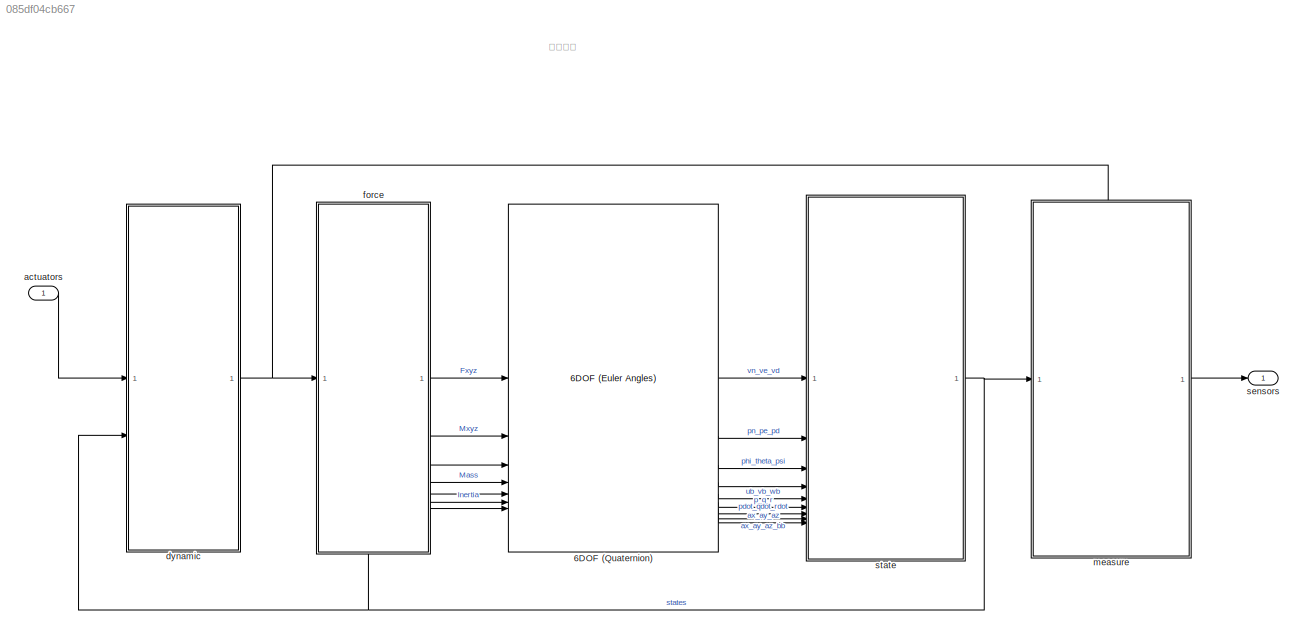
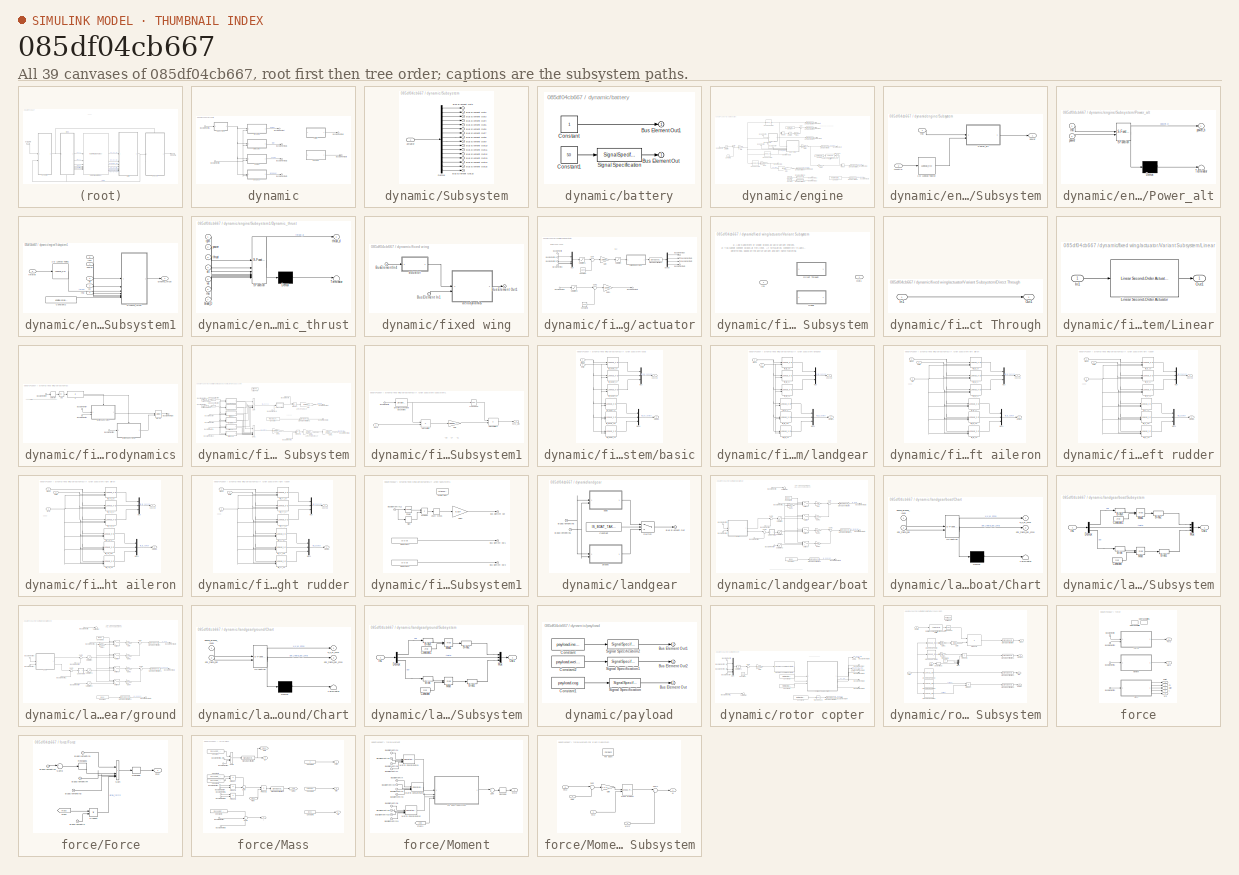
[diagram: thumbnail index - all 39 canvases of the model, root first then tree order]
MODEL slx_085df04cb667
KIND model
CONFIG AbsTol = auto
CONFIG EnableMultiTasking = off
CONFIG FixedStep = 5/1000
CONFIG MaxStep = auto
CONFIG MinStep = auto
CONFIG RelTol = 1e-3
CONFIG SampleTimeConstraint = Unconstrained
CONFIG SolverName = FixedStepAuto
CONFIG StartTime = 0
CONFIG StopTime = 200
BLOCK [Reference] 6DOF (Quaternion)  REF=shared6dof/6DOF (Euler Angles)
  LibrarySourceBlock = aerolib6dof2/6DOF (Quaternion)
  SourceBlock = shared6dof/6DOF (Euler Angles)
  SourceType = 6DOF EoM (Body Axis)
BLOCK [Inport] actuators
  OutDataTypeStr = Bus: actuator_outputs_s
BLOCK [SubSystem] dynamic
BLOCK [Inport] dynamic/Bus Element In
  Port = 2
BLOCK [Inport] dynamic/Bus Element In1
BLOCK [Outport] dynamic/Bus Element Out
BLOCK [Outport] dynamic/Bus Element Out1
BLOCK [Outport] dynamic/Bus Element Out2
BLOCK [Outport] dynamic/Bus Element Out3
BLOCK [Outport] dynamic/Bus Element Out4
BLOCK [Outport] dynamic/Bus Element Out5
BLOCK [SubSystem] dynamic/Subsystem
BLOCK [Outport] dynamic/Subsystem/Bus Element Out1
BLOCK [Outport] dynamic/Subsystem/Bus Element Out10
BLOCK [Outport] dynamic/Subsystem/Bus Element Out11
BLOCK [Outport] dynamic/Subsystem/Bus Element Out12
BLOCK [Outport] dynamic/Subsystem/Bus Element Out13
BLOCK [Outport] dynamic/Subsystem/Bus Element Out14
BLOCK [Outport] dynamic/Subsystem/Bus Element Out15
BLOCK [Outport] dynamic/Subsystem/Bus Element Out16
BLOCK [Outport] dynamic/Subsystem/Bus Element Out2
BLOCK [Outport] dynamic/Subsystem/Bus Element Out3
BLOCK [Outport] dynamic/Subsystem/Bus Element Out4
BLOCK [Outport] dynamic/Subsystem/Bus Element Out5
BLOCK [Outport] dynamic/Subsystem/Bus Element Out6
BLOCK [Outport] dynamic/Subsystem/Bus Element Out7
BLOCK [Outport] dynamic/Subsystem/Bus Element Out8
BLOCK [Outport] dynamic/Subsystem/Bus Element Out9
BLOCK [Demux] dynamic/Subsystem/Demux
  Outputs = 16
BLOCK [Inport] dynamic/Subsystem/actuator
BLOCK [SubSystem] dynamic/battery
BLOCK [Outport] dynamic/battery/Bus Element Out
BLOCK [Outport] dynamic/battery/Bus Element Out1
BLOCK [Constant] dynamic/battery/Constant
BLOCK [Constant] dynamic/battery/Constant1
  Value = 50
BLOCK [SignalSpecification] dynamic/battery/Signal Specification
  Unit = V
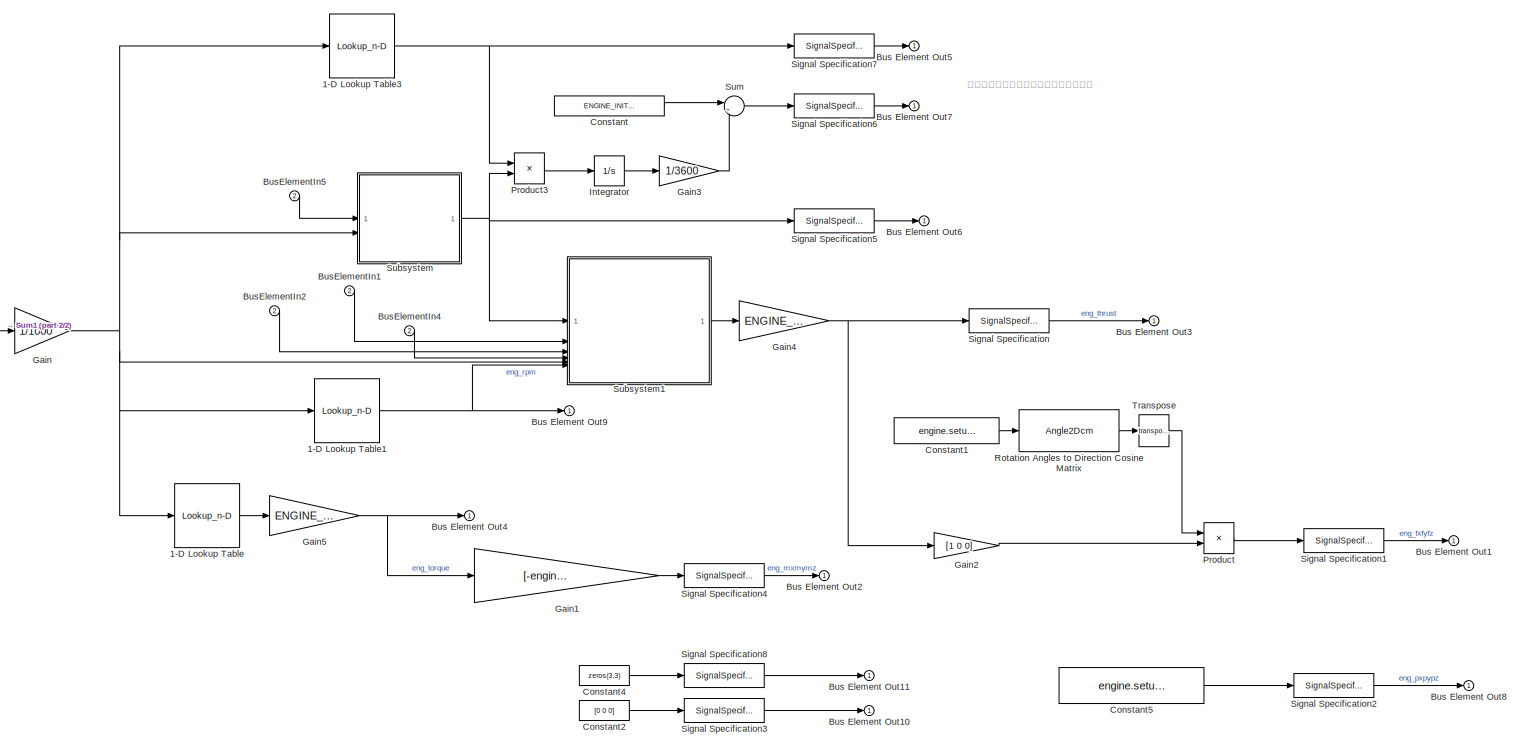
[diagram: dynamic/engine - part 1/2, most of the canvas]
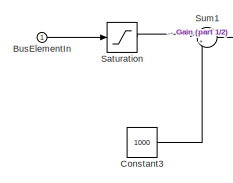
[diagram: dynamic/engine - part 2/2, middle left region]
BLOCK [SubSystem] dynamic/engine
BLOCK [Lookup_n-D] dynamic/engine/1-D Lookup Table
  BeginIndexSearchUsingPreviousIndexResult = on
  BreakpointsForDimension1 = engine.torque.delta
  ExtrapMethod = Clip
  IndexSearchMethod = Linear search
  InputPortMap = u0
  InternalRulePriority = Speed
  NumberOfTableDimensions = 1
  RndMeth = Simplest
  Table = engine.torque.moment
BLOCK [Lookup_n-D] dynamic/engine/1-D Lookup Table1
  BeginIndexSearchUsingPreviousIndexResult = on
  BreakpointsForDimension1 = engine.torque.delta
  ExtrapMethod = Clip
  IndexSearchMethod = Linear search
  InputPortMap = u0
  InternalRulePriority = Speed
  NumberOfTableDimensions = 1
  RndMeth = Simplest
  Table = engine.torque.rpm
BLOCK [Lookup_n-D] dynamic/engine/1-D Lookup Table3
  BeginIndexSearchUsingPreviousIndexResult = on
  BreakpointsForDimension1 = engine.torque.delta
  ExtrapMethod = Clip
  IndexSearchMethod = Linear search
  InputPortMap = u0
  InternalRulePriority = Speed
  NumberOfTableDimensions = 1
  RndMeth = Simplest
  Table = engine.torque.fuel_cons_rate
BLOCK [Outport] dynamic/engine/Bus Element Out1
BLOCK [Outport] dynamic/engine/Bus Element Out10
BLOCK [Outport] dynamic/engine/Bus Element Out11
BLOCK [Outport] dynamic/engine/Bus Element Out2
BLOCK [Outport] dynamic/engine/Bus Element Out3
BLOCK [Outport] dynamic/engine/Bus Element Out4
BLOCK [Outport] dynamic/engine/Bus Element Out5
BLOCK [Outport] dynamic/engine/Bus Element Out6
BLOCK [Outport] dynamic/engine/Bus Element Out7
BLOCK [Outport] dynamic/engine/Bus Element Out8
BLOCK [Outport] dynamic/engine/Bus Element Out9
BLOCK [Inport] dynamic/engine/BusElementIn
BLOCK [Inport] dynamic/engine/BusElementIn1
  Port = 2
BLOCK [Inport] dynamic/engine/BusElementIn2
  Port = 2
BLOCK [Inport] dynamic/engine/BusElementIn4
  Port = 2
BLOCK [Inport] dynamic/engine/BusElementIn5
  Port = 2
BLOCK [Constant] dynamic/engine/Constant
  Value = ENGINE_INIT_FUEL
BLOCK [Constant] dynamic/engine/Constant1
  Value = engine.setup_angle
BLOCK [Constant] dynamic/engine/Constant2
  Value = [0 0 0]
BLOCK [Constant] dynamic/engine/Constant3
  Value = 1000
BLOCK [Constant] dynamic/engine/Constant4
  Value = zeros(3,3)
BLOCK [Constant] dynamic/engine/Constant5
  Value = engine.setup_position
BLOCK [Gain] dynamic/engine/Gain
  Gain = 1/1000
BLOCK [Gain] dynamic/engine/Gain1
  Gain = [-engine.setup_rotation, 0, 0]
BLOCK [Gain] dynamic/engine/Gain2
  Gain = [1 0 0]
BLOCK [Gain] dynamic/engine/Gain3
  Gain = 1/3600
BLOCK [Gain] dynamic/engine/Gain4
  Gain = ENGINE_THRUST_SCALE
BLOCK [Gain] dynamic/engine/Gain5
  Gain = ENGINE_TORQUE_SCALE
BLOCK [Integrator] dynamic/engine/Integrator
BLOCK [Product] dynamic/engine/Product
  Multiplication = Matrix(*)
BLOCK [Product] dynamic/engine/Product3
BLOCK [Angle2Dcm] dynamic/engine/Rotation Angles to Direction Cosine Matrix
  AttributesFormatString = Rotation Order: %<rotationOrder>
BLOCK [Saturate] dynamic/engine/Saturation
  LowerLimit = 1000
  UpperLimit = 2000
BLOCK [SignalSpecification] dynamic/engine/Signal Specification
  Unit = N
BLOCK [SignalSpecification] dynamic/engine/Signal Specification1
  Unit = N
BLOCK [SignalSpecification] dynamic/engine/Signal Specification2
  Unit = m
BLOCK [SignalSpecification] dynamic/engine/Signal Specification3
  Unit = m
BLOCK [SignalSpecification] dynamic/engine/Signal Specification4
  Unit = N*m
BLOCK [SignalSpecification] dynamic/engine/Signal Specification5
  Unit = W
BLOCK [SignalSpecification] dynamic/engine/Signal Specification6
  NameLocation = left
  Unit = kg
BLOCK [SignalSpecification] dynamic/engine/Signal Specification7
  NameLocation = left
  Unit = kg/s
BLOCK [SignalSpecification] dynamic/engine/Signal Specification8
  Unit = kg*m^2
BLOCK [SubSystem] dynamic/engine/Subsystem
BLOCK [Lookup_n-D] dynamic/engine/Subsystem/1-D Lookup Table2
  BeginIndexSearchUsingPreviousIndexResult = on
  BreakpointsForDimension1 = engine.torque.delta
  ExtrapMethod = Clip
  IndexSearchMethod = Linear search
  InputPortMap = u0
  InternalRulePriority = Speed
  NumberOfTableDimensions = 1
  RndMeth = Simplest
  Table = engine.torque.power
BLOCK [SubSystem] dynamic/engine/Subsystem/Power_alt
  ErrorFcn = Stateflow.Translate.translate
  PermitHierarchicalResolution = ExplicitOnly
  SFBlockType = MATLAB Function
  TreatAsAtomicUnit = on
BLOCK [Demux] dynamic/engine/Subsystem/Power_alt/ Demux 
  Outputs = 1
BLOCK [S-Function] dynamic/engine/Subsystem/Power_alt/ SFunction 
  EnableBusSupport = on
  FunctionName = sf_sfun
  PortCounts = [2 2]
  SFcnIsStateOwnerBlock = off
  SFunctionDeploymentMode = off
  Tag = Stateflow S-Function 3
BLOCK [Terminator] dynamic/engine/Subsystem/Power_alt/ Terminator 
BLOCK [Inport] dynamic/engine/Subsystem/Power_alt/power
  Port = 2
BLOCK [Outport] dynamic/engine/Subsystem/Power_alt/power_h
BLOCK [Inport] dynamic/engine/Subsystem/Power_alt/rho
BLOCK [Outport] dynamic/engine/Subsystem/power
BLOCK [Inport] dynamic/engine/Subsystem/rho
BLOCK [Inport] dynamic/engine/Subsystem/throttle
  Port = 2
BLOCK [SubSystem] dynamic/engine/Subsystem1
BLOCK [Lookup_n-D] dynamic/engine/Subsystem1/1-D Lookup Table1
  BeginIndexSearchUsingPreviousIndexResult = on
  BreakpointsForDimension1 = engine.thrust.delta
  ExtrapMethod = Clip
  IndexSearchMethod = Linear search
  InputPortMap = u0
  InternalRulePriority = Speed
  NumberOfTableDimensions = 1
  RndMeth = Simplest
  Table = engine.thrust.force
BLOCK [Constant] dynamic/engine/Subsystem1/Constant2
  Value = engine.propeller_dia
BLOCK [SubSystem] dynamic/engine/Subsystem1/Dynamic_thrust
  ErrorFcn = Stateflow.Translate.translate
  PermitHierarchicalResolution = ExplicitOnly
  SFBlockType = MATLAB Function
  TreatAsAtomicUnit = on
BLOCK [Demux] dynamic/engine/Subsystem1/Dynamic_thrust/ Demux 
  Outputs = 1
BLOCK [S-Function] dynamic/engine/Subsystem1/Dynamic_thrust/ SFunction 
  EnableBusSupport = on
  FunctionName = sf_sfun
  PortCounts = [7 2]
  SFcnIsStateOwnerBlock = off
  SFunctionDeploymentMode = off
  Tag = Stateflow S-Function 1
BLOCK [Terminator] dynamic/engine/Subsystem1/Dynamic_thrust/ Terminator 
BLOCK [Inport] dynamic/engine/Subsystem1/Dynamic_thrust/alt
  Port = 4
BLOCK [Inport] dynamic/engine/Subsystem1/Dynamic_thrust/blade_D
  Port = 7
BLOCK [Inport] dynamic/engine/Subsystem1/Dynamic_thrust/power
  Port = 2
BLOCK [Inport] dynamic/engine/Subsystem1/Dynamic_thrust/rho
  Port = 6
BLOCK [Inport] dynamic/engine/Subsystem1/Dynamic_thrust/rpm
BLOCK [Inport] dynamic/engine/Subsystem1/Dynamic_thrust/thrust
  Port = 3
BLOCK [Outport] dynamic/engine/Subsystem1/Dynamic_thrust/thrust_d
BLOCK [Inport] dynamic/engine/Subsystem1/Dynamic_thrust/va
  Port = 5
BLOCK [Inport] dynamic/engine/Subsystem1/alt
  Port = 3
BLOCK [Outport] dynamic/engine/Subsystem1/dynamic_thrust
BLOCK [Inport] dynamic/engine/Subsystem1/power
BLOCK [Inport] dynamic/engine/Subsystem1/rho
  Port = 4
BLOCK [Inport] dynamic/engine/Subsystem1/rpm
  Port = 6
BLOCK [Inport] dynamic/engine/Subsystem1/throttle
  Port = 5
BLOCK [Inport] dynamic/engine/Subsystem1/va
  Port = 2
BLOCK [Sum] dynamic/engine/Sum
  Inputs = |+-
BLOCK [Sum] dynamic/engine/Sum1
  Inputs = |+-
BLOCK [Math] dynamic/engine/Transpose
  Operator = transpose
BLOCK [SubSystem] dynamic/fixed wing
BLOCK [Inport] dynamic/fixed wing/Bus Element In1
  Port = 2
BLOCK [Outport] dynamic/fixed wing/Bus Element Out1
BLOCK [Inport] dynamic/fixed wing/BusElementIn4
BLOCK [SubSystem] dynamic/fixed wing/actuator
BLOCK [Outport] dynamic/fixed wing/actuator/Bus Element Out
BLOCK [Outport] dynamic/fixed wing/actuator/Bus Element Out1
BLOCK [Outport] dynamic/fixed wing/actuator/Bus Element Out2
BLOCK [Outport] dynamic/fixed wing/actuator/Bus Element Out3
BLOCK [Outport] dynamic/fixed wing/actuator/Bus Element Out4
BLOCK [Inport] dynamic/fixed wing/actuator/BusElementIn
BLOCK [Inport] dynamic/fixed wing/actuator/BusElementIn1
BLOCK [Inport] dynamic/fixed wing/actuator/BusElementIn2
BLOCK [Inport] dynamic/fixed wing/actuator/BusElementIn3
BLOCK [Inport] dynamic/fixed wing/actuator/BusElementIn4
BLOCK [Constant] dynamic/fixed wing/actuator/Constant
  Value = 1500
BLOCK [Constant] dynamic/fixed wing/actuator/Constant3
  Value = 1000
BLOCK [Demux] dynamic/fixed wing/actuator/Demux
BLOCK [Gain] dynamic/fixed wing/actuator/Gain
  Gain = 25/500
BLOCK [Gain] dynamic/fixed wing/actuator/Gain1
  Gain = 1/1000
BLOCK [Mux] dynamic/fixed wing/actuator/Mux
  DisplayOption = bar
BLOCK [Saturate] dynamic/fixed wing/actuator/Saturation
  LowerLimit = -20
  UpperLimit = 20
BLOCK [Saturate] dynamic/fixed wing/actuator/Saturation1
  LowerLimit = 1000
  UpperLimit = 2000
BLOCK [Saturate] dynamic/fixed wing/actuator/Saturation2
  LowerLimit = 1000
  UpperLimit = 2000
BLOCK [SignalSpecification] dynamic/fixed wing/actuator/Signal Specification4
  Unit = deg
BLOCK [Sum] dynamic/fixed wing/actuator/Sum
  Inputs = |+-
BLOCK [Sum] dynamic/fixed wing/actuator/Sum1
  Inputs = |+-
BLOCK [SubSystem] dynamic/fixed wing/actuator/Variant Subsystem
  Variant = on
BLOCK [SubSystem] dynamic/fixed wing/actuator/Variant Subsystem/Direct Through
  VariantControl = true
BLOCK [Inport] dynamic/fixed wing/actuator/Variant Subsystem/Direct Through/In1
BLOCK [Outport] dynamic/fixed wing/actuator/Variant Subsystem/Direct Through/Out1
BLOCK [Inport] dynamic/fixed wing/actuator/Variant Subsystem/In1
BLOCK [SubSystem] dynamic/fixed wing/actuator/Variant Subsystem/Linear
  VariantControl = false
BLOCK [Inport] dynamic/fixed wing/actuator/Variant Subsystem/Linear/In1
BLOCK [Reference] dynamic/fixed wing/actuator/Variant Subsystem/Linear/Linear Second-Order Actuator  REF=aerolibactuator/Linear Second-Order Actuator
  SourceBlock = aerolibactuator/Linear Second-Order Actuator
  SourceType = LinearSecondOrderActuator
BLOCK [Outport] dynamic/fixed wing/actuator/Variant Subsystem/Linear/Out1
BLOCK [Outport] dynamic/fixed wing/actuator/Variant Subsystem/Out1
BLOCK [SubSystem] dynamic/fixed wing/aerodynamics
BLOCK [Abs] dynamic/fixed wing/aerodynamics/Abs
  SaturateOnIntegerOverflow = off
BLOCK [Outport] dynamic/fixed wing/aerodynamics/Bus Element Out
BLOCK [Inport] dynamic/fixed wing/aerodynamics/BusElementIn1
  Port = 2
BLOCK [Inport] dynamic/fixed wing/aerodynamics/BusElementIn2
  Port = 2
BLOCK [Inport] dynamic/fixed wing/aerodynamics/BusElementIn4
  Port = 2
BLOCK [Inport] dynamic/fixed wing/aerodynamics/BusElementIn7
BLOCK [If] dynamic/fixed wing/aerodynamics/If
  IfExpression = u1 > 3
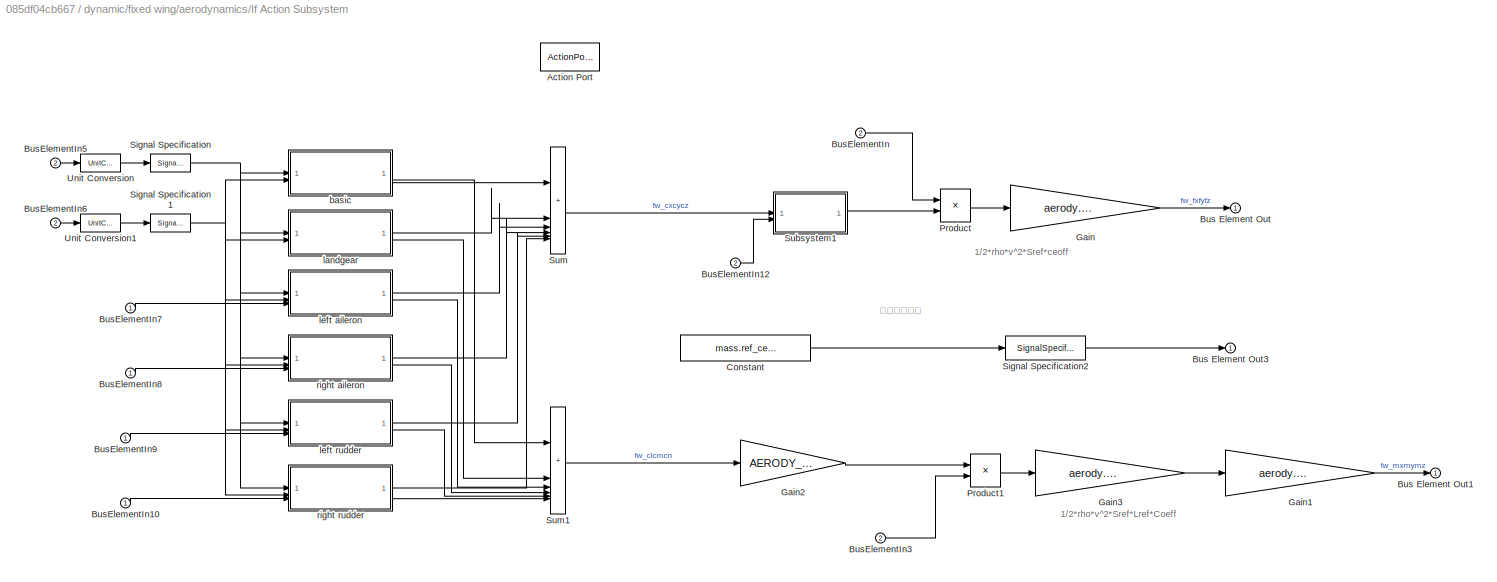
BLOCK [SubSystem] dynamic/fixed wing/aerodynamics/If Action Subsystem
  TreatAsAtomicUnit = on
BLOCK [ActionPort] dynamic/fixed wing/aerodynamics/If Action Subsystem/Action Port
  ActionPortLabel = if(u1 > 3)
  InitializeStates = reset
BLOCK [Outport] dynamic/fixed wing/aerodynamics/If Action Subsystem/Bus Element Out
BLOCK [Outport] dynamic/fixed wing/aerodynamics/If Action Subsystem/Bus Element Out1
BLOCK [Outport] dynamic/fixed wing/aerodynamics/If Action Subsystem/Bus Element Out3
BLOCK [Inport] dynamic/fixed wing/aerodynamics/If Action Subsystem/BusElementIn
  Port = 2
BLOCK [Inport] dynamic/fixed wing/aerodynamics/If Action Subsystem/BusElementIn10
BLOCK [Inport] dynamic/fixed wing/aerodynamics/If Action Subsystem/BusElementIn12
  Port = 2
BLOCK [Inport] dynamic/fixed wing/aerodynamics/If Action Subsystem/BusElementIn3
  Port = 2
BLOCK [Inport] dynamic/fixed wing/aerodynamics/If Action Subsystem/BusElementIn5
  Port = 2
BLOCK [Inport] dynamic/fixed wing/aerodynamics/If Action Subsystem/BusElementIn6
  Port = 2
BLOCK [Inport] dynamic/fixed wing/aerodynamics/If Action Subsystem/BusElementIn7
BLOCK [Inport] dynamic/fixed wing/aerodynamics/If Action Subsystem/BusElementIn8
BLOCK [Inport] dynamic/fixed wing/aerodynamics/If Action Subsystem/BusElementIn9
BLOCK [Constant] dynamic/fixed wing/aerodynamics/If Action Subsystem/Constant
  Value = mass.ref_center
BLOCK [Gain] dynamic/fixed wing/aerodynamics/If Action Subsystem/Gain
  Gain = aerody.ref_aera
BLOCK [Gain] dynamic/fixed wing/aerodynamics/If Action Subsystem/Gain1
  Gain = aerody.ref_aera
BLOCK [Gain] dynamic/fixed wing/aerodynamics/If Action Subsystem/Gain2
  Gain = AERODY_MOMENT_SCALE
BLOCK [Gain] dynamic/fixed wing/aerodynamics/If Action Subsystem/Gain3
  Gain = aerody.ref_length
BLOCK [Product] dynamic/fixed wing/aerodynamics/If Action Subsystem/Product
BLOCK [Product] dynamic/fixed wing/aerodynamics/If Action Subsystem/Product1
BLOCK [SignalSpecification] dynamic/fixed wing/aerodynamics/If Action Subsystem/Signal Specification
  Unit = deg
BLOCK [SignalSpecification] dynamic/fixed wing/aerodynamics/If Action Subsystem/Signal Specification1
  Unit = deg
BLOCK [SignalSpecification] dynamic/fixed wing/aerodynamics/If Action Subsystem/Signal Specification2
  Unit = m
BLOCK [SubSystem] dynamic/fixed wing/aerodynamics/If Action Subsystem/Subsystem1
BLOCK [Inport] dynamic/fixed wing/aerodynamics/If Action Subsystem/Subsystem1/BusElementIn
  Port = 2
BLOCK [Reference] dynamic/fixed wing/aerodynamics/If Action Subsystem/Subsystem1/Direction Cosine Matrix Body to Wind  REF=aerolibtransform2/Direction Cosine Matrix
Body to Wind
  SourceBlock = aerolibtransform2/Direction Cosine Matrix\nBody to Wind
  SourceType = DCM Body to Wind
BLOCK [Inport] dynamic/fixed wing/aerodynamics/If Action Subsystem/Subsystem1/Fxyz
BLOCK [Outport] dynamic/fixed wing/aerodynamics/If Action Subsystem/Subsystem1/Fxyz_Lim
BLOCK [Gain] dynamic/fixed wing/aerodynamics/If Action Subsystem/Subsystem1/Gain
  Gain = AERODY_FORCE_SCALE
BLOCK [Product] dynamic/fixed wing/aerodynamics/If Action Subsystem/Subsystem1/Matrix Multiply
  Multiplication = Matrix(*)
BLOCK [Product] dynamic/fixed wing/aerodynamics/If Action Subsystem/Subsystem1/Matrix Multiply1
  Multiplication = Matrix(*)
BLOCK [Math] dynamic/fixed wing/aerodynamics/If Action Subsystem/Subsystem1/Transpose
  Operator = transpose
BLOCK [Sum] dynamic/fixed wing/aerodynamics/If Action Subsystem/Sum
  IconShape = rectangular
  Inputs = 6
BLOCK [Sum] dynamic/fixed wing/aerodynamics/If Action Subsystem/Sum1
  IconShape = rectangular
  Inputs = 6
BLOCK [UnitConversion] dynamic/fixed wing/aerodynamics/If Action Subsystem/Unit Conversion
BLOCK [UnitConversion] dynamic/fixed wing/aerodynamics/If Action Subsystem/Unit Conversion1
BLOCK [SubSystem] dynamic/fixed wing/aerodynamics/If Action Subsystem/basic
BLOCK [Mux] dynamic/fixed wing/aerodynamics/If Action Subsystem/basic/Mux
  DisplayOption = bar
  Inputs = 3
BLOCK [Mux] dynamic/fixed wing/aerodynamics/If Action Subsystem/basic/Mux1
  DisplayOption = bar
  Inputs = 3
BLOCK [Inport] dynamic/fixed wing/aerodynamics/If Action Subsystem/basic/alpha
  Unit = deg
BLOCK [Inport] dynamic/fixed wing/aerodynamics/If Action Subsystem/basic/beta
  Port = 2
  Unit = deg
BLOCK [Outport] dynamic/fixed wing/aerodynamics/If Action Subsystem/basic/clcmcn
  Port = 2
BLOCK [Outport] dynamic/fixed wing/aerodynamics/If Action Subsystem/basic/cxcycz
BLOCK [Lookup_n-D] dynamic/fixed wing/aerodynamics/If Action Subsystem/basic/fw_basic_cl
  BeginIndexSearchUsingPreviousIndexResult = on
  BreakpointsForDimension1 = aerody.basic.cll.alpha
  BreakpointsForDimension1FirstPoint = 10
  BreakpointsForDimension1Spacing = 12
  BreakpointsForDimension2 = aerody.basic.cll.beta
  BreakpointsForDimension2FirstPoint = 10
  BreakpointsForDimension2Spacing = 12
  DiagnosticForOutOfRangeInput = Warning
  ExtrapMethod = Clip
  IndexSearchMethod = Linear search
  InputPortMap = u0,u1
  InternalRulePriority = Speed
  LookupTableObject = ''
  RndMeth = Simplest
  Table = aerody.basic.cll.coeff
BLOCK [Lookup_n-D] dynamic/fixed wing/aerodynamics/If Action Subsystem/basic/fw_basic_cm
  BeginIndexSearchUsingPreviousIndexResult = on
  BreakpointsForDimension1 = aerody.basic.cm.alpha
  BreakpointsForDimension1FirstPoint = 10
  BreakpointsForDimension1Spacing = 12
  BreakpointsForDimension2 = aerody.basic.cm.beta
  BreakpointsForDimension2FirstPoint = 10
  BreakpointsForDimension2Spacing = 12
  DiagnosticForOutOfRangeInput = Warning
  ExtrapMethod = Clip
  IndexSearchMethod = Linear search
  InputPortMap = u0,u1
  InternalRulePriority = Speed
  LookupTableObject = ''
  RndMeth = Simplest
  Table = aerody.basic.cm.coeff
BLOCK [Lookup_n-D] dynamic/fixed wing/aerodynamics/If Action Subsystem/basic/fw_basic_cn
  BeginIndexSearchUsingPreviousIndexResult = on
  BreakpointsForDimension1 = aerody.basic.cn.alpha
  BreakpointsForDimension1FirstPoint = 10
  BreakpointsForDimension1Spacing = 12
  BreakpointsForDimension2 = aerody.basic.cn.beta
  BreakpointsForDimension2FirstPoint = 10
  BreakpointsForDimension2Spacing = 12
  DiagnosticForOutOfRangeInput = Warning
  ExtrapMethod = Clip
  IndexSearchMethod = Linear search
  InputPortMap = u0,u1
  InternalRulePriority = Speed
  LookupTableObject = ''
  RndMeth = Simplest
  Table = aerody.basic.cn.coeff
BLOCK [Lookup_n-D] dynamic/fixed wing/aerodynamics/If Action Subsystem/basic/fw_basic_cx
  BeginIndexSearchUsingPreviousIndexResult = on
  BreakpointsForDimension1 = aerody.basic.cx.alpha
  BreakpointsForDimension1FirstPoint = 10
  BreakpointsForDimension1Spacing = 12
  BreakpointsForDimension2 = aerody.basic.cx.beta
  BreakpointsForDimension2FirstPoint = 10
  BreakpointsForDimension2Spacing = 12
  DiagnosticForOutOfRangeInput = Warning
  ExtrapMethod = Clip
  IndexSearchMethod = Linear search
  InputPortMap = u0,u1
  InternalRulePriority = Speed
  LookupTableObject = ''
  RndMeth = Simplest
  Table = aerody.basic.cx.coeff
BLOCK [Lookup_n-D] dynamic/fixed wing/aerodynamics/If Action Subsystem/basic/fw_basic_cy
  BeginIndexSearchUsingPreviousIndexResult = on
  BreakpointsForDimension1 = aerody.basic.cy.alpha
  BreakpointsForDimension1FirstPoint = 10
  BreakpointsForDimension1Spacing = 12
  BreakpointsForDimension2 = aerody.basic.cy.beta
  BreakpointsForDimension2FirstPoint = 10
  BreakpointsForDimension2Spacing = 12
  DiagnosticForOutOfRangeInput = Warning
  ExtrapMethod = Clip
  IndexSearchMethod = Linear search
  InputPortMap = u0,u1
  InternalRulePriority = Speed
  LookupTableObject = ''
  RndMeth = Simplest
  Table = aerody.basic.cy.coeff
BLOCK [Lookup_n-D] dynamic/fixed wing/aerodynamics/If Action Subsystem/basic/fw_basic_cz
  BeginIndexSearchUsingPreviousIndexResult = on
  BreakpointsForDimension1 = aerody.basic.cz.alpha
  BreakpointsForDimension1FirstPoint = 10
  BreakpointsForDimension1Spacing = 12
  BreakpointsForDimension2 = aerody.basic.cz.beta
  BreakpointsForDimension2FirstPoint = 10
  BreakpointsForDimension2Spacing = 12
  DiagnosticForOutOfRangeInput = Warning
  ExtrapMethod = Clip
  IndexSearchMethod = Linear search
  InputPortMap = u0,u1
  InternalRulePriority = Speed
  LookupTableObject = ''
  RndMeth = Simplest
  Table = aerody.basic.cz.coeff
BLOCK [SubSystem] dynamic/fixed wing/aerodynamics/If Action Subsystem/landgear
BLOCK [Mux] dynamic/fixed wing/aerodynamics/If Action Subsystem/landgear/Mux
  DisplayOption = bar
  Inputs = 3
BLOCK [Mux] dynamic/fixed wing/aerodynamics/If Action Subsystem/landgear/Mux1
  DisplayOption = bar
  Inputs = 3
BLOCK [Inport] dynamic/fixed wing/aerodynamics/If Action Subsystem/landgear/alpha
BLOCK [Inport] dynamic/fixed wing/aerodynamics/If Action Subsystem/landgear/beta
  Port = 2
BLOCK [Outport] dynamic/fixed wing/aerodynamics/If Action Subsystem/landgear/clcmcn
  Port = 2
BLOCK [Outport] dynamic/fixed wing/aerodynamics/If Action Subsystem/landgear/cxcycz
BLOCK [Lookup_n-D] dynamic/fixed wing/aerodynamics/If Action Subsystem/landgear/fw_lg_cl
  BeginIndexSearchUsingPreviousIndexResult = on
  BreakpointsForDimension1 = aerody.landgear.cll.alpha
  BreakpointsForDimension1FirstPoint = 10
  BreakpointsForDimension1Spacing = 12
  BreakpointsForDimension2 = aerody.landgear.cll.beta
  BreakpointsForDimension2FirstPoint = 10
  BreakpointsForDimension2Spacing = 12
  DiagnosticForOutOfRangeInput = Warning
  ExtrapMethod = Clip
  IndexSearchMethod = Linear search
  InputPortMap = u0,u1
  InternalRulePriority = Speed
  LookupTableObject = ''
  RndMeth = Simplest
  Table = aerody.landgear.cll.coeff
BLOCK [Lookup_n-D] dynamic/fixed wing/aerodynamics/If Action Subsystem/landgear/fw_lg_cm
  BeginIndexSearchUsingPreviousIndexResult = on
  BreakpointsForDimension1 = aerody.landgear.cm.alpha
  BreakpointsForDimension1FirstPoint = 10
  BreakpointsForDimension1Spacing = 12
  BreakpointsForDimension2 = aerody.landgear.cm.beta
  BreakpointsForDimension2FirstPoint = 10
  BreakpointsForDimension2Spacing = 12
  DiagnosticForOutOfRangeInput = Warning
  ExtrapMethod = Clip
  IndexSearchMethod = Linear search
  InputPortMap = u0,u1
  InternalRulePriority = Speed
  LookupTableObject = ''
  RndMeth = Simplest
  Table = aerody.landgear.cm.coeff
BLOCK [Lookup_n-D] dynamic/fixed wing/aerodynamics/If Action Subsystem/landgear/fw_lg_cn
  BeginIndexSearchUsingPreviousIndexResult = on
  BreakpointsForDimension1 = aerody.landgear.cn.alpha
  BreakpointsForDimension1FirstPoint = 10
  BreakpointsForDimension1Spacing = 12
  BreakpointsForDimension2 = aerody.landgear.cn.beta
  BreakpointsForDimension2FirstPoint = 10
  BreakpointsForDimension2Spacing = 12
  DiagnosticForOutOfRangeInput = Warning
  ExtrapMethod = Clip
  IndexSearchMethod = Linear search
  InputPortMap = u0,u1
  InternalRulePriority = Speed
  LookupTableObject = ''
  RndMeth = Simplest
  Table = aerody.landgear.cn.coeff
BLOCK [Lookup_n-D] dynamic/fixed wing/aerodynamics/If Action Subsystem/landgear/fw_lg_cx
  BeginIndexSearchUsingPreviousIndexResult = on
  BreakpointsForDimension1 = aerody.landgear.cx.alpha
  BreakpointsForDimension1FirstPoint = 10
  BreakpointsForDimension1Spacing = 12
  BreakpointsForDimension2 = aerody.landgear.cx.beta
  BreakpointsForDimension2FirstPoint = 10
  BreakpointsForDimension2Spacing = 12
  DiagnosticForOutOfRangeInput = Warning
  ExtrapMethod = Clip
  IndexSearchMethod = Linear search
  InputPortMap = u0,u1
  InternalRulePriority = Speed
  LookupTableObject = ''
  RndMeth = Simplest
  Table = aerody.landgear.cx.coeff
BLOCK [Lookup_n-D] dynamic/fixed wing/aerodynamics/If Action Subsystem/landgear/fw_lg_cy
  BeginIndexSearchUsingPreviousIndexResult = on
  BreakpointsForDimension1 = aerody.landgear.cy.alpha
  BreakpointsForDimension1FirstPoint = 10
  BreakpointsForDimension1Spacing = 12
  BreakpointsForDimension2 = aerody.landgear.cy.beta
  BreakpointsForDimension2FirstPoint = 10
  BreakpointsForDimension2Spacing = 12
  DiagnosticForOutOfRangeInput = Warning
  ExtrapMethod = Clip
  IndexSearchMethod = Linear search
  InputPortMap = u0,u1
  InternalRulePriority = Speed
  LookupTableObject = ''
  RndMeth = Simplest
  Table = aerody.landgear.cy.coeff
BLOCK [Lookup_n-D] dynamic/fixed wing/aerodynamics/If Action Subsystem/landgear/fw_lg_cz
  BeginIndexSearchUsingPreviousIndexResult = on
  BreakpointsForDimension1 = aerody.landgear.cz.alpha
  BreakpointsForDimension1FirstPoint = 10
  BreakpointsForDimension1Spacing = 12
  BreakpointsForDimension2 = aerody.landgear.cz.beta
  BreakpointsForDimension2FirstPoint = 10
  BreakpointsForDimension2Spacing = 12
  DiagnosticForOutOfRangeInput = Warning
  ExtrapMethod = Clip
  IndexSearchMethod = Linear search
  InputPortMap = u0,u1
  InternalRulePriority = Speed
  LookupTableObject = ''
  RndMeth = Simplest
  Table = aerody.landgear.cz.coeff
BLOCK [SubSystem] dynamic/fixed wing/aerodynamics/If Action Subsystem/left aileron
BLOCK [Mux] dynamic/fixed wing/aerodynamics/If Action Subsystem/left aileron/Mux
  DisplayOption = bar
  Inputs = 3
BLOCK [Mux] dynamic/fixed wing/aerodynamics/If Action Subsystem/left aileron/Mux1
  DisplayOption = bar
  Inputs = 3
BLOCK [Inport] dynamic/fixed wing/aerodynamics/If Action Subsystem/left aileron/alpha
BLOCK [Inport] dynamic/fixed wing/aerodynamics/If Action Subsystem/left aileron/beta
  Port = 2
BLOCK [Outport] dynamic/fixed wing/aerodynamics/If Action Subsystem/left aileron/clcmcn
  Port = 2
BLOCK [Outport] dynamic/fixed wing/aerodynamics/If Action Subsystem/left aileron/cxcycz
BLOCK [Inport] dynamic/fixed wing/aerodynamics/If Action Subsystem/left aileron/dla
  Port = 3
BLOCK [Lookup_n-D] dynamic/fixed wing/aerodynamics/If Action Subsystem/left aileron/fw_la_cl
  BeginIndexSearchUsingPreviousIndexResult = on
  BreakpointsForDimension1 = aerody.left_aileron.cll.alpha
  BreakpointsForDimension1FirstPoint = 10
  BreakpointsForDimension1Spacing = 12
  BreakpointsForDimension2 = aerody.left_aileron.cll.beta
  BreakpointsForDimension2FirstPoint = 10
  BreakpointsForDimension2Spacing = 12
  BreakpointsForDimension3 = aerody.left_aileron.cll.delta
  DiagnosticForOutOfRangeInput = Warning
  ExtrapMethod = Clip
  IndexSearchMethod = Linear search
  InputPortMap = u0,u1,u2
  InternalRulePriority = Speed
  LookupTableObject = ''
  NumberOfTableDimensions = 3
  RndMeth = Simplest
  Table = aerody.left_aileron.cll.coeff
BLOCK [Lookup_n-D] dynamic/fixed wing/aerodynamics/If Action Subsystem/left aileron/fw_la_cm
  BeginIndexSearchUsingPreviousIndexResult = on
  BreakpointsForDimension1 = aerody.left_aileron.cm.alpha
  BreakpointsForDimension1FirstPoint = 10
  BreakpointsForDimension1Spacing = 12
  BreakpointsForDimension2 = aerody.left_aileron.cm.beta
  BreakpointsForDimension2FirstPoint = 10
  BreakpointsForDimension2Spacing = 12
  BreakpointsForDimension3 = aerody.left_aileron.cm.delta
  DiagnosticForOutOfRangeInput = Warning
  ExtrapMethod = Clip
  IndexSearchMethod = Linear search
  InputPortMap = u0,u1,u2
  InternalRulePriority = Speed
  LookupTableObject = ''
  NumberOfTableDimensions = 3
  RndMeth = Simplest
  Table = aerody.left_aileron.cm.coeff
BLOCK [Lookup_n-D] dynamic/fixed wing/aerodynamics/If Action Subsystem/left aileron/fw_la_cn
  BeginIndexSearchUsingPreviousIndexResult = on
  BreakpointsForDimension1 = aerody.left_aileron.cn.alpha
  BreakpointsForDimension1FirstPoint = 10
  BreakpointsForDimension1Spacing = 12
  BreakpointsForDimension2 = aerody.left_aileron.cn.beta
  BreakpointsForDimension2FirstPoint = 10
  BreakpointsForDimension2Spacing = 12
  BreakpointsForDimension3 = aerody.left_aileron.cn.delta
  DiagnosticForOutOfRangeInput = Warning
  ExtrapMethod = Clip
  IndexSearchMethod = Linear search
  InputPortMap = u0,u1,u2
  InternalRulePriority = Speed
  LookupTableObject = ''
  NumberOfTableDimensions = 3
  RndMeth = Simplest
  Table = aerody.left_aileron.cn.coeff
BLOCK [Lookup_n-D] dynamic/fixed wing/aerodynamics/If Action Subsystem/left aileron/fw_la_cx
  BeginIndexSearchUsingPreviousIndexResult = on
  BreakpointsForDimension1 = aerody.left_aileron.cx.alpha
  BreakpointsForDimension1FirstPoint = 10
  BreakpointsForDimension1Spacing = 12
  BreakpointsForDimension2 = aerody.left_aileron.cx.beta
  BreakpointsForDimension2FirstPoint = 10
  BreakpointsForDimension2Spacing = 12
  BreakpointsForDimension3 = aerody.left_aileron.cx.delta
  DiagnosticForOutOfRangeInput = Warning
  ExtrapMethod = Clip
  IndexSearchMethod = Linear search
  InputPortMap = u0,u1,u2
  InternalRulePriority = Speed
  LookupTableObject = ''
  NumberOfTableDimensions = 3
  RndMeth = Simplest
  Table = aerody.left_aileron.cx.coeff
BLOCK [Lookup_n-D] dynamic/fixed wing/aerodynamics/If Action Subsystem/left aileron/fw_la_cy
  BeginIndexSearchUsingPreviousIndexResult = on
  BreakpointsForDimension1 = aerody.left_aileron.cy.alpha
  BreakpointsForDimension1FirstPoint = 10
  BreakpointsForDimension1Spacing = 12
  BreakpointsForDimension2 = aerody.left_aileron.cy.beta
  BreakpointsForDimension2FirstPoint = 10
  BreakpointsForDimension2Spacing = 12
  BreakpointsForDimension3 = aerody.left_aileron.cy.delta
  DiagnosticForOutOfRangeInput = Warning
  ExtrapMethod = Clip
  IndexSearchMethod = Linear search
  InputPortMap = u0,u1,u2
  InternalRulePriority = Speed
  LookupTableObject = ''
  NumberOfTableDimensions = 3
  RndMeth = Simplest
  Table = aerody.left_aileron.cy.coeff
BLOCK [Lookup_n-D] dynamic/fixed wing/aerodynamics/If Action Subsystem/left aileron/fw_la_cz
  BeginIndexSearchUsingPreviousIndexResult = on
  BreakpointsForDimension1 = aerody.left_aileron.cz.alpha
  BreakpointsForDimension1FirstPoint = 10
  BreakpointsForDimension1Spacing = 12
  BreakpointsForDimension2 = aerody.left_aileron.cz.beta
  BreakpointsForDimension2FirstPoint = 10
  BreakpointsForDimension2Spacing = 12
  BreakpointsForDimension3 = aerody.left_aileron.cz.delta
  DiagnosticForOutOfRangeInput = Warning
  ExtrapMethod = Clip
  IndexSearchMethod = Linear search
  InputPortMap = u0,u1,u2
  InternalRulePriority = Speed
  LookupTableObject = ''
  NumberOfTableDimensions = 3
  RndMeth = Simplest
  Table = aerody.left_aileron.cz.coeff
BLOCK [SubSystem] dynamic/fixed wing/aerodynamics/If Action Subsystem/left rudder
BLOCK [Mux] dynamic/fixed wing/aerodynamics/If Action Subsystem/left rudder/Mux
  DisplayOption = bar
  Inputs = 3
BLOCK [Mux] dynamic/fixed wing/aerodynamics/If Action Subsystem/left rudder/Mux1
  DisplayOption = bar
  Inputs = 3
BLOCK [Inport] dynamic/fixed wing/aerodynamics/If Action Subsystem/left rudder/alpha
BLOCK [Inport] dynamic/fixed wing/aerodynamics/If Action Subsystem/left rudder/beta
  Port = 2
BLOCK [Outport] dynamic/fixed wing/aerodynamics/If Action Subsystem/left rudder/clcmcn
  Port = 2
BLOCK [Outport] dynamic/fixed wing/aerodynamics/If Action Subsystem/left rudder/cxcycz
BLOCK [Inport] dynamic/fixed wing/aerodynamics/If Action Subsystem/left rudder/dlr
  Port = 3
BLOCK [Lookup_n-D] dynamic/fixed wing/aerodynamics/If Action Subsystem/left rudder/fw_lr_cl
  BeginIndexSearchUsingPreviousIndexResult = on
  BreakpointsForDimension1 = aerody.left_rudder.cll.alpha
  BreakpointsForDimension1FirstPoint = 10
  BreakpointsForDimension1Spacing = 12
  BreakpointsForDimension2 = aerody.left_rudder.cll.beta
  BreakpointsForDimension2FirstPoint = 10
  BreakpointsForDimension2Spacing = 12
  BreakpointsForDimension3 = aerody.left_rudder.cll.delta
  DiagnosticForOutOfRangeInput = Warning
  ExtrapMethod = Clip
  IndexSearchMethod = Linear search
  InputPortMap = u0,u1,u2
  InternalRulePriority = Speed
  LookupTableObject = ''
  NumberOfTableDimensions = 3
  RndMeth = Simplest
  Table = aerody.left_rudder.cll.coeff
BLOCK [Lookup_n-D] dynamic/fixed wing/aerodynamics/If Action Subsystem/left rudder/fw_lr_cm
  BeginIndexSearchUsingPreviousIndexResult = on
  BreakpointsForDimension1 = aerody.left_rudder.cm.alpha
  BreakpointsForDimension1FirstPoint = 10
  BreakpointsForDimension1Spacing = 12
  BreakpointsForDimension2 = aerody.left_rudder.cm.beta
  BreakpointsForDimension2FirstPoint = 10
  BreakpointsForDimension2Spacing = 12
  BreakpointsForDimension3 = aerody.left_rudder.cm.delta
  DiagnosticForOutOfRangeInput = Warning
  ExtrapMethod = Clip
  IndexSearchMethod = Linear search
  InputPortMap = u0,u1,u2
  InternalRulePriority = Speed
  LookupTableObject = ''
  NumberOfTableDimensions = 3
  RndMeth = Simplest
  Table = aerody.left_rudder.cm.coeff
BLOCK [Lookup_n-D] dynamic/fixed wing/aerodynamics/If Action Subsystem/left rudder/fw_lr_cn
  BeginIndexSearchUsingPreviousIndexResult = on
  BreakpointsForDimension1 = aerody.left_rudder.cn.alpha
  BreakpointsForDimension1FirstPoint = 10
  BreakpointsForDimension1Spacing = 12
  BreakpointsForDimension2 = aerody.left_rudder.cn.beta
  BreakpointsForDimension2FirstPoint = 10
  BreakpointsForDimension2Spacing = 12
  BreakpointsForDimension3 = aerody.left_rudder.cn.delta
  DiagnosticForOutOfRangeInput = Warning
  ExtrapMethod = Clip
  IndexSearchMethod = Linear search
  InputPortMap = u0,u1,u2
  InternalRulePriority = Speed
  LookupTableObject = ''
  NumberOfTableDimensions = 3
  RndMeth = Simplest
  Table = aerody.left_rudder.cn.coeff
BLOCK [Lookup_n-D] dynamic/fixed wing/aerodynamics/If Action Subsystem/left rudder/fw_lr_cx
  BeginIndexSearchUsingPreviousIndexResult = on
  BreakpointsForDimension1 = aerody.left_rudder.cx.alpha
  BreakpointsForDimension1FirstPoint = 10
  BreakpointsForDimension1Spacing = 12
  BreakpointsForDimension2 = aerody.left_rudder.cx.beta
  BreakpointsForDimension2FirstPoint = 10
  BreakpointsForDimension2Spacing = 12
  BreakpointsForDimension3 = aerody.left_rudder.cx.delta
  DiagnosticForOutOfRangeInput = Warning
  ExtrapMethod = Clip
  IndexSearchMethod = Linear search
  InputPortMap = u0,u1,u2
  InternalRulePriority = Speed
  LookupTableObject = ''
  NumberOfTableDimensions = 3
  RndMeth = Simplest
  Table = aerody.left_rudder.cx.coeff
BLOCK [Lookup_n-D] dynamic/fixed wing/aerodynamics/If Action Subsystem/left rudder/fw_lr_cy
  BeginIndexSearchUsingPreviousIndexResult = on
  BreakpointsForDimension1 = aerody.left_rudder.cy.alpha
  BreakpointsForDimension1FirstPoint = 10
  BreakpointsForDimension1Spacing = 12
  BreakpointsForDimension2 = aerody.left_rudder.cy.beta
  BreakpointsForDimension2FirstPoint = 10
  BreakpointsForDimension2Spacing = 12
  BreakpointsForDimension3 = aerody.left_rudder.cy.delta
  DiagnosticForOutOfRangeInput = Warning
  ExtrapMethod = Clip
  IndexSearchMethod = Linear search
  InputPortMap = u0,u1,u2
  InternalRulePriority = Speed
  LookupTableObject = ''
  NumberOfTableDimensions = 3
  RndMeth = Simplest
  Table = aerody.left_rudder.cy.coeff
BLOCK [Lookup_n-D] dynamic/fixed wing/aerodynamics/If Action Subsystem/left rudder/fw_lr_cz
  BeginIndexSearchUsingPreviousIndexResult = on
  BreakpointsForDimension1 = aerody.left_rudder.cz.alpha
  BreakpointsForDimension1FirstPoint = 10
  BreakpointsForDimension1Spacing = 12
  BreakpointsForDimension2 = aerody.left_rudder.cz.beta
  BreakpointsForDimension2FirstPoint = 10
  BreakpointsForDimension2Spacing = 12
  BreakpointsForDimension3 = aerody.left_rudder.cz.delta
  DiagnosticForOutOfRangeInput = Warning
  ExtrapMethod = Clip
  IndexSearchMethod = Linear search
  InputPortMap = u0,u1,u2
  InternalRulePriority = Speed
  LookupTableObject = ''
  NumberOfTableDimensions = 3
  RndMeth = Simplest
  Table = aerody.left_rudder.cz.coeff
BLOCK [SubSystem] dynamic/fixed wing/aerodynamics/If Action Subsystem/right aileron
BLOCK [Mux] dynamic/fixed wing/aerodynamics/If Action Subsystem/right aileron/Mux
  DisplayOption = bar
  Inputs = 3
BLOCK [Mux] dynamic/fixed wing/aerodynamics/If Action Subsystem/right aileron/Mux1
  DisplayOption = bar
  Inputs = 3
BLOCK [Inport] dynamic/fixed wing/aerodynamics/If Action Subsystem/right aileron/alpha
BLOCK [Inport] dynamic/fixed wing/aerodynamics/If Action Subsystem/right aileron/beta
  Port = 2
BLOCK [Outport] dynamic/fixed wing/aerodynamics/If Action Subsystem/right aileron/clcmcn
  Port = 2
BLOCK [Outport] dynamic/fixed wing/aerodynamics/If Action Subsystem/right aileron/cxcycz
BLOCK [Inport] dynamic/fixed wing/aerodynamics/If Action Subsystem/right aileron/dra
  Port = 3
BLOCK [Lookup_n-D] dynamic/fixed wing/aerodynamics/If Action Subsystem/right aileron/fw_ra_cl
  BeginIndexSearchUsingPreviousIndexResult = on
  BreakpointsForDimension1 = aerody.right_aileron.cll.alpha
  BreakpointsForDimension1FirstPoint = 10
  BreakpointsForDimension1Spacing = 12
  BreakpointsForDimension2 = aerody.right_aileron.cll.beta
  BreakpointsForDimension2FirstPoint = 10
  BreakpointsForDimension2Spacing = 12
  BreakpointsForDimension3 = aerody.right_aileron.cll.delta
  DiagnosticForOutOfRangeInput = Warning
  ExtrapMethod = Clip
  IndexSearchMethod = Linear search
  InputPortMap = u0,u1,u2
  InternalRulePriority = Speed
  LookupTableObject = ''
  NumberOfTableDimensions = 3
  RndMeth = Simplest
  Table = aerody.right_aileron.cll.coeff
BLOCK [Lookup_n-D] dynamic/fixed wing/aerodynamics/If Action Subsystem/right aileron/fw_ra_cm
  BeginIndexSearchUsingPreviousIndexResult = on
  BreakpointsForDimension1 = aerody.right_aileron.cm.alpha
  BreakpointsForDimension1FirstPoint = 10
  BreakpointsForDimension1Spacing = 12
  BreakpointsForDimension2 = aerody.right_aileron.cm.beta
  BreakpointsForDimension2FirstPoint = 10
  BreakpointsForDimension2Spacing = 12
  BreakpointsForDimension3 = aerody.right_aileron.cm.delta
  DiagnosticForOutOfRangeInput = Warning
  ExtrapMethod = Clip
  IndexSearchMethod = Linear search
  InputPortMap = u0,u1,u2
  InternalRulePriority = Speed
  LookupTableObject = ''
  NumberOfTableDimensions = 3
  RndMeth = Simplest
  Table = aerody.right_aileron.cm.coeff
BLOCK [Lookup_n-D] dynamic/fixed wing/aerodynamics/If Action Subsystem/right aileron/fw_ra_cn
  BeginIndexSearchUsingPreviousIndexResult = on
  BreakpointsForDimension1 = aerody.right_aileron.cn.alpha
  BreakpointsForDimension1FirstPoint = 10
  BreakpointsForDimension1Spacing = 12
  BreakpointsForDimension2 = aerody.right_aileron.cn.beta
  BreakpointsForDimension2FirstPoint = 10
  BreakpointsForDimension2Spacing = 12
  BreakpointsForDimension3 = aerody.right_aileron.cn.delta
  DiagnosticForOutOfRangeInput = Warning
  ExtrapMethod = Clip
  IndexSearchMethod = Linear search
  InputPortMap = u0,u1,u2
  InternalRulePriority = Speed
  LookupTableObject = ''
  NumberOfTableDimensions = 3
  RndMeth = Simplest
  Table = aerody.right_aileron.cn.coeff
BLOCK [Lookup_n-D] dynamic/fixed wing/aerodynamics/If Action Subsystem/right aileron/fw_ra_cx
  BeginIndexSearchUsingPreviousIndexResult = on
  BreakpointsForDimension1 = aerody.right_aileron.cx.alpha
  BreakpointsForDimension1FirstPoint = 10
  BreakpointsForDimension1Spacing = 12
  BreakpointsForDimension2 = aerody.right_aileron.cx.beta
  BreakpointsForDimension2FirstPoint = 10
  BreakpointsForDimension2Spacing = 12
  BreakpointsForDimension3 = aerody.right_aileron.cx.delta
  DiagnosticForOutOfRangeInput = Warning
  ExtrapMethod = Clip
  IndexSearchMethod = Linear search
  InputPortMap = u0,u1,u2
  InternalRulePriority = Speed
  LookupTableObject = ''
  NumberOfTableDimensions = 3
  RndMeth = Simplest
  Table = aerody.right_aileron.cx.coeff
BLOCK [Lookup_n-D] dynamic/fixed wing/aerodynamics/If Action Subsystem/right aileron/fw_ra_cy
  BeginIndexSearchUsingPreviousIndexResult = on
  BreakpointsForDimension1 = aerody.right_aileron.cy.alpha
  BreakpointsForDimension1FirstPoint = 10
  BreakpointsForDimension1Spacing = 12
  BreakpointsForDimension2 = aerody.right_aileron.cy.beta
  BreakpointsForDimension2FirstPoint = 10
  BreakpointsForDimension2Spacing = 12
  BreakpointsForDimension3 = aerody.right_aileron.cy.delta
  DiagnosticForOutOfRangeInput = Warning
  ExtrapMethod = Clip
  IndexSearchMethod = Linear search
  InputPortMap = u0,u1,u2
  InternalRulePriority = Speed
  LookupTableObject = ''
  NumberOfTableDimensions = 3
  RndMeth = Simplest
  Table = aerody.right_aileron.cy.coeff
BLOCK [Lookup_n-D] dynamic/fixed wing/aerodynamics/If Action Subsystem/right aileron/fw_ra_cz
  BeginIndexSearchUsingPreviousIndexResult = on
  BreakpointsForDimension1 = aerody.right_aileron.cz.alpha
  BreakpointsForDimension1FirstPoint = 10
  BreakpointsForDimension1Spacing = 12
  BreakpointsForDimension2 = aerody.right_aileron.cz.beta
  BreakpointsForDimension2FirstPoint = 10
  BreakpointsForDimension2Spacing = 12
  BreakpointsForDimension3 = aerody.right_aileron.cz.delta
  DiagnosticForOutOfRangeInput = Warning
  ExtrapMethod = Clip
  IndexSearchMethod = Linear search
  InputPortMap = u0,u1,u2
  InternalRulePriority = Speed
  LookupTableObject = ''
  NumberOfTableDimensions = 3
  RndMeth = Simplest
  Table = aerody.right_aileron.cz.coeff
BLOCK [SubSystem] dynamic/fixed wing/aerodynamics/If Action Subsystem/right rudder
BLOCK [Mux] dynamic/fixed wing/aerodynamics/If Action Subsystem/right rudder/Mux
  DisplayOption = bar
  Inputs = 3
BLOCK [Mux] dynamic/fixed wing/aerodynamics/If Action Subsystem/right rudder/Mux1
  DisplayOption = bar
  Inputs = 3
BLOCK [Inport] dynamic/fixed wing/aerodynamics/If Action Subsystem/right rudder/alpha
BLOCK [Inport] dynamic/fixed wing/aerodynamics/If Action Subsystem/right rudder/beta
  Port = 2
BLOCK [Outport] dynamic/fixed wing/aerodynamics/If Action Subsystem/right rudder/clcmcn
  Port = 2
BLOCK [Outport] dynamic/fixed wing/aerodynamics/If Action Subsystem/right rudder/cxcycz
BLOCK [Inport] dynamic/fixed wing/aerodynamics/If Action Subsystem/right rudder/drr
  Port = 3
BLOCK [Lookup_n-D] dynamic/fixed wing/aerodynamics/If Action Subsystem/right rudder/fw_rr_cl
  BeginIndexSearchUsingPreviousIndexResult = on
  BreakpointsForDimension1 = aerody.right_rudder.cll.alpha
  BreakpointsForDimension1FirstPoint = 10
  BreakpointsForDimension1Spacing = 12
  BreakpointsForDimension2 = aerody.right_rudder.cll.beta
  BreakpointsForDimension2FirstPoint = 10
  BreakpointsForDimension2Spacing = 12
  BreakpointsForDimension3 = aerody.right_rudder.cll.delta
  DiagnosticForOutOfRangeInput = Warning
  ExtrapMethod = Clip
  IndexSearchMethod = Linear search
  InputPortMap = u0,u1,u2
  InternalRulePriority = Speed
  LookupTableObject = ''
  NumberOfTableDimensions = 3
  RndMeth = Simplest
  Table = aerody.right_rudder.cll.coeff
BLOCK [Lookup_n-D] dynamic/fixed wing/aerodynamics/If Action Subsystem/right rudder/fw_rr_cm
  BeginIndexSearchUsingPreviousIndexResult = on
  BreakpointsForDimension1 = aerody.right_rudder.cm.alpha
  BreakpointsForDimension1FirstPoint = 10
  BreakpointsForDimension1Spacing = 12
  BreakpointsForDimension2 = aerody.right_rudder.cm.beta
  BreakpointsForDimension2FirstPoint = 10
  BreakpointsForDimension2Spacing = 12
  BreakpointsForDimension3 = aerody.right_rudder.cm.delta
  DiagnosticForOutOfRangeInput = Warning
  ExtrapMethod = Clip
  IndexSearchMethod = Linear search
  InputPortMap = u0,u1,u2
  InternalRulePriority = Speed
  LookupTableObject = ''
  NumberOfTableDimensions = 3
  RndMeth = Simplest
  Table = aerody.right_rudder.cm.coeff
BLOCK [Lookup_n-D] dynamic/fixed wing/aerodynamics/If Action Subsystem/right rudder/fw_rr_cn
  BeginIndexSearchUsingPreviousIndexResult = on
  BreakpointsForDimension1 = aerody.right_rudder.cn.alpha
  BreakpointsForDimension1FirstPoint = 10
  BreakpointsForDimension1Spacing = 12
  BreakpointsForDimension2 = aerody.right_rudder.cn.beta
  BreakpointsForDimension2FirstPoint = 10
  BreakpointsForDimension2Spacing = 12
  BreakpointsForDimension3 = aerody.right_rudder.cn.delta
  DiagnosticForOutOfRangeInput = Warning
  ExtrapMethod = Clip
  IndexSearchMethod = Linear search
  InputPortMap = u0,u1,u2
  InternalRulePriority = Speed
  LookupTableObject = ''
  NumberOfTableDimensions = 3
  RndMeth = Simplest
  Table = aerody.right_rudder.cn.coeff
BLOCK [Lookup_n-D] dynamic/fixed wing/aerodynamics/If Action Subsystem/right rudder/fw_rr_cx
  BeginIndexSearchUsingPreviousIndexResult = on
  BreakpointsForDimension1 = aerody.right_rudder.cx.alpha
  BreakpointsForDimension1FirstPoint = 10
  BreakpointsForDimension1Spacing = 12
  BreakpointsForDimension2 = aerody.right_rudder.cx.beta
  BreakpointsForDimension2FirstPoint = 10
  BreakpointsForDimension2Spacing = 12
  BreakpointsForDimension3 = aerody.right_rudder.cx.delta
  DiagnosticForOutOfRangeInput = Warning
  ExtrapMethod = Clip
  IndexSearchMethod = Linear search
  InputPortMap = u0,u1,u2
  InternalRulePriority = Speed
  LookupTableObject = ''
  NumberOfTableDimensions = 3
  RndMeth = Simplest
  Table = aerody.right_rudder.cx.coeff
BLOCK [Lookup_n-D] dynamic/fixed wing/aerodynamics/If Action Subsystem/right rudder/fw_rr_cy
  BeginIndexSearchUsingPreviousIndexResult = on
  BreakpointsForDimension1 = aerody.right_rudder.cy.alpha
  BreakpointsForDimension1FirstPoint = 10
  BreakpointsForDimension1Spacing = 12
  BreakpointsForDimension2 = aerody.right_rudder.cy.beta
  BreakpointsForDimension2FirstPoint = 10
  BreakpointsForDimension2Spacing = 12
  BreakpointsForDimension3 = aerody.right_rudder.cy.delta
  DiagnosticForOutOfRangeInput = Warning
  ExtrapMethod = Clip
  IndexSearchMethod = Linear search
  InputPortMap = u0,u1,u2
  InternalRulePriority = Speed
  LookupTableObject = ''
  NumberOfTableDimensions = 3
  RndMeth = Simplest
  Table = aerody.right_rudder.cy.coeff
BLOCK [Lookup_n-D] dynamic/fixed wing/aerodynamics/If Action Subsystem/right rudder/fw_rr_cz
  BeginIndexSearchUsingPreviousIndexResult = on
  BreakpointsForDimension1 = aerody.right_rudder.cz.alpha
  BreakpointsForDimension1FirstPoint = 10
  BreakpointsForDimension1Spacing = 12
  BreakpointsForDimension2 = aerody.right_rudder.cz.beta
  BreakpointsForDimension2FirstPoint = 10
  BreakpointsForDimension2Spacing = 12
  BreakpointsForDimension3 = aerody.right_rudder.cz.delta
  DiagnosticForOutOfRangeInput = Warning
  ExtrapMethod = Clip
  IndexSearchMethod = Linear search
  InputPortMap = u0,u1,u2
  InternalRulePriority = Speed
  LookupTableObject = ''
  NumberOfTableDimensions = 3
  RndMeth = Simplest
  Table = aerody.right_rudder.cz.coeff
BLOCK [SubSystem] dynamic/fixed wing/aerodynamics/If Action Subsystem1
  TreatAsAtomicUnit = on
BLOCK [ActionPort] dynamic/fixed wing/aerodynamics/If Action Subsystem1/Action Port
  ActionPortLabel = else
  InitializeStates = reset
BLOCK [Outport] dynamic/fixed wing/aerodynamics/If Action Subsystem1/Bus Element Out
BLOCK [Outport] dynamic/fixed wing/aerodynamics/If Action Subsystem1/Bus Element Out1
BLOCK [Outport] dynamic/fixed wing/aerodynamics/If Action Subsystem1/Bus Element Out3
BLOCK [Inport] dynamic/fixed wing/aerodynamics/If Action Subsystem1/BusElementIn12
BLOCK [Constant] dynamic/fixed wing/aerodynamics/If Action Subsystem1/Constant1
  Value = [0 0 0]
BLOCK [Constant] dynamic/fixed wing/aerodynamics/If Action Subsystem1/Constant2
  Value = [0 0 0]
BLOCK [Gain] dynamic/fixed wing/aerodynamics/If Action Subsystem1/Gain2
  Gain = 0.314
BLOCK [Math] dynamic/fixed wing/aerodynamics/If Action Subsystem1/Power
  Operator = square
BLOCK [Product] dynamic/fixed wing/aerodynamics/If Action Subsystem1/Product
BLOCK [Signum] dynamic/fixed wing/aerodynamics/If Action Subsystem1/Sign
BLOCK [UnaryMinus] dynamic/fixed wing/aerodynamics/If Action Subsystem1/Unary Minus
BLOCK [Merge] dynamic/fixed wing/aerodynamics/Merge
  InitialOutput = 0
BLOCK [Selector] dynamic/fixed wing/aerodynamics/Selector
  IndexOptions = Index vector (dialog)
  Indices = 1
  InputPortWidth = 3
  OutputSizes = 1
BLOCK [SubSystem] dynamic/landgear
BLOCK [Outport] dynamic/landgear/Bus Element Out
BLOCK [Inport] dynamic/landgear/BusElementIn5
  Port = 2
BLOCK [Inport] dynamic/landgear/BusElementIn6
BLOCK [Constant] dynamic/landgear/Constant
  Value = IS_BOAT_TAKEOFF_LAND
BLOCK [Switch] dynamic/landgear/Switch
  Criteria = u2 > Threshold
  InputSameDT = off
  SaturateOnIntegerOverflow = off
BLOCK [SubSystem] dynamic/landgear/boat
BLOCK [Outport] dynamic/landgear/boat/Bus Element Out1
BLOCK [Outport] dynamic/landgear/boat/Bus Element Out2
BLOCK [Outport] dynamic/landgear/boat/Bus Element Out3
BLOCK [Inport] dynamic/landgear/boat/BusElementIn
BLOCK [Inport] dynamic/landgear/boat/BusElementIn1
  Port = 2
BLOCK [Inport] dynamic/landgear/boat/BusElementIn2
  Port = 2
BLOCK [Inport] dynamic/landgear/boat/BusElementIn3
  Port = 2
BLOCK [Inport] dynamic/landgear/boat/BusElementIn4
  Port = 2
BLOCK [Inport] dynamic/landgear/boat/BusElementIn5
  Port = 2
BLOCK [Inport] dynamic/landgear/boat/BusElementIn6
  Port = 2
BLOCK [SubSystem] dynamic/landgear/boat/Chart
  ErrorFcn = Stateflow.Translate.translate
  PermitHierarchicalResolution = ExplicitOnly
  SFBlockType = Chart
  TreatAsAtomicUnit = on
BLOCK [Demux] dynamic/landgear/boat/Chart/ Demux 
  Outputs = 1
BLOCK [S-Function] dynamic/landgear/boat/Chart/ SFunction 
  EnableBusSupport = on
  FunctionName = sf_sfun
  Parameters = BOAT_PHI_THETA_PSI,BOAT_U_V_W,INIT_PHI_THETA_PSI
  PortCounts = [2 3]
  SFcnIsStateOwnerBlock = off
  SFunctionDeploymentMode = off
  Tag = Stateflow S-Function 2
BLOCK [Terminator] dynamic/landgear/boat/Chart/ Terminator 
BLOCK [Inport] dynamic/landgear/boat/Chart/above_ground_level
BLOCK [Inport] dynamic/landgear/boat/Chart/phi_theta_psi
  Port = 2
BLOCK [Outport] dynamic/landgear/boat/Chart/phi_theta_psi_cmd
  Port = 2
BLOCK [Outport] dynamic/landgear/boat/Chart/u_v_w_cmd
BLOCK [Constant] dynamic/landgear/boat/Constant
  Value = [0 0 0]
BLOCK [Constant] dynamic/landgear/boat/Constant2
  Value = [0 0 0]
BLOCK [Gain] dynamic/landgear/boat/Gain
  Gain = 1e5
BLOCK [Gain] dynamic/landgear/boat/Gain1
  Gain = [0,0,1]
BLOCK [Gain] dynamic/landgear/boat/Gain2
  Gain = 1e4
BLOCK [Gain] dynamic/landgear/boat/Gain3
  Gain = 5e4
BLOCK [Gain] dynamic/landgear/boat/Gain4
  Gain = -2e3
BLOCK [Saturate] dynamic/landgear/boat/Saturation
  LowerLimit = -10
  UpperLimit = 10
BLOCK [Saturate] dynamic/landgear/boat/Saturation1
  LowerLimit = -10*pi/180
  UpperLimit = 10*pi/180
BLOCK [Saturate] dynamic/landgear/boat/Saturation2
  LowerLimit = -100*pi/180
  UpperLimit = 100*pi/180
BLOCK [SignalSpecification] dynamic/landgear/boat/Signal Specification
  Unit = N
BLOCK [SignalSpecification] dynamic/landgear/boat/Signal Specification1
  Unit = N*m
BLOCK [SignalSpecification] dynamic/landgear/boat/Signal Specification2
  Unit = m
BLOCK [SubSystem] dynamic/landgear/boat/Subsystem
BLOCK [Bias] dynamic/landgear/boat/Subsystem/Bias
  Bias = pi
  SaturateOnIntegerOverflow = off
BLOCK [Bias] dynamic/landgear/boat/Subsystem/Bias1
  Bias = -pi
  SaturateOnIntegerOverflow = off
BLOCK [Bias] dynamic/landgear/boat/Subsystem/Bias2
  Bias = -pi
  SaturateOnIntegerOverflow = off
BLOCK [Bias] dynamic/landgear/boat/Subsystem/Bias3
  Bias = pi
  SaturateOnIntegerOverflow = off
BLOCK [Constant] dynamic/landgear/boat/Subsystem/Constant
  Value = 2*pi
BLOCK [Constant] dynamic/landgear/boat/Subsystem/Constant1
  Value = 2*pi
BLOCK [Demux] dynamic/landgear/boat/Subsystem/Demux
  Outputs = 3
BLOCK [Inport] dynamic/landgear/boat/Subsystem/In1
BLOCK [Math] dynamic/landgear/boat/Subsystem/Mod
  Operator = mod
BLOCK [Math] dynamic/landgear/boat/Subsystem/Mod1
  Operator = mod
BLOCK [Mux] dynamic/landgear/boat/Subsystem/Mux
  DisplayOption = bar
  Inputs = 3
BLOCK [Outport] dynamic/landgear/boat/Subsystem/Out1
BLOCK [Sum] dynamic/landgear/boat/Sum
  Inputs = |++
BLOCK [Sum] dynamic/landgear/boat/Sum1
  Inputs = |++
BLOCK [Sum] dynamic/landgear/boat/Sum2
  Inputs = |+-
BLOCK [Sum] dynamic/landgear/boat/Sum3
  Inputs = |+-
BLOCK [Switch] dynamic/landgear/boat/Switch
  Criteria = u2 > Threshold
  InputSameDT = off
  SaturateOnIntegerOverflow = off
BLOCK [Switch] dynamic/landgear/boat/Switch1
  Criteria = u2 > Threshold
  InputSameDT = off
  SaturateOnIntegerOverflow = off
BLOCK [Switch] dynamic/landgear/boat/Switch2
  Criteria = u2 > Threshold
  InputSameDT = off
  SaturateOnIntegerOverflow = off
BLOCK [Switch] dynamic/landgear/boat/Switch3
  Criteria = u2 > Threshold
  InputSameDT = off
  SaturateOnIntegerOverflow = off
BLOCK [Terminator] dynamic/landgear/boat/Terminator
BLOCK [SubSystem] dynamic/landgear/ground
BLOCK [Outport] dynamic/landgear/ground/Bus Element Out1
BLOCK [Outport] dynamic/landgear/ground/Bus Element Out2
BLOCK [Outport] dynamic/landgear/ground/Bus Element Out3
BLOCK [Inport] dynamic/landgear/ground/BusElementIn
BLOCK [Inport] dynamic/landgear/ground/BusElementIn1
  Port = 2
BLOCK [Inport] dynamic/landgear/ground/BusElementIn2
  Port = 2
BLOCK [Inport] dynamic/landgear/ground/BusElementIn3
  Port = 2
BLOCK [Inport] dynamic/landgear/ground/BusElementIn4
  Port = 2
BLOCK [Inport] dynamic/landgear/ground/BusElementIn6
  Port = 2
BLOCK [Inport] dynamic/landgear/ground/BusElementIn7
  Port = 2
BLOCK [SubSystem] dynamic/landgear/ground/Chart
  ErrorFcn = Stateflow.Translate.translate
  PermitHierarchicalResolution = ExplicitOnly
  SFBlockType = Chart
  TreatAsAtomicUnit = on
BLOCK [Demux] dynamic/landgear/ground/Chart/ Demux 
  Outputs = 1
BLOCK [S-Function] dynamic/landgear/ground/Chart/ SFunction 
  EnableBusSupport = on
  FunctionName = sf_sfun
  Parameters = INIT_PHI_THETA_PSI,INIT_U_V_W
  PortCounts = [2 3]
  SFcnIsStateOwnerBlock = off
  SFunctionDeploymentMode = off
  Tag = Stateflow S-Function 4
BLOCK [Terminator] dynamic/landgear/ground/Chart/ Terminator 
BLOCK [Inport] dynamic/landgear/ground/Chart/above_ground_level
BLOCK [Inport] dynamic/landgear/ground/Chart/phi_theta_psi
  Port = 2
BLOCK [Outport] dynamic/landgear/ground/Chart/phi_theta_psi_cmd
  Port = 2
BLOCK [Outport] dynamic/landgear/ground/Chart/u_v_w_cmd
BLOCK [Constant] dynamic/landgear/ground/Constant
  Value = [0 0 0]
BLOCK [Constant] dynamic/landgear/ground/Constant2
  Value = [0 0 0]
BLOCK [Gain] dynamic/landgear/ground/Gain
  Gain = 1e5
BLOCK [Gain] dynamic/landgear/ground/Gain1
  Gain = [0,0,1]
BLOCK [Gain] dynamic/landgear/ground/Gain2
  Gain = 1e4
BLOCK [Gain] dynamic/landgear/ground/Gain3
  Gain = 5e4
BLOCK [Gain] dynamic/landgear/ground/Gain4
  Gain = -2e3
BLOCK [Saturate] dynamic/landgear/ground/Saturation
  LowerLimit = -10
  UpperLimit = 10
BLOCK [Saturate] dynamic/landgear/ground/Saturation1
  LowerLimit = -10*pi/180
  UpperLimit = 10*pi/180
BLOCK [Saturate] dynamic/landgear/ground/Saturation2
  LowerLimit = -100*pi/180
  UpperLimit = 100*pi/180
BLOCK [SignalSpecification] dynamic/landgear/ground/Signal Specification
  Unit = N
BLOCK [SignalSpecification] dynamic/landgear/ground/Signal Specification1
  Unit = N*m
BLOCK [SignalSpecification] dynamic/landgear/ground/Signal Specification2
  Unit = m
BLOCK [SubSystem] dynamic/landgear/ground/Subsystem
BLOCK [Bias] dynamic/landgear/ground/Subsystem/Bias
  Bias = pi
  SaturateOnIntegerOverflow = off
BLOCK [Bias] dynamic/landgear/ground/Subsystem/Bias1
  Bias = -pi
  SaturateOnIntegerOverflow = off
BLOCK [Bias] dynamic/landgear/ground/Subsystem/Bias2
  Bias = -pi
  SaturateOnIntegerOverflow = off
BLOCK [Bias] dynamic/landgear/ground/Subsystem/Bias3
  Bias = pi
  SaturateOnIntegerOverflow = off
BLOCK [Constant] dynamic/landgear/ground/Subsystem/Constant
  Value = 2*pi
BLOCK [Constant] dynamic/landgear/ground/Subsystem/Constant1
  Value = 2*pi
BLOCK [Demux] dynamic/landgear/ground/Subsystem/Demux
  Outputs = 3
BLOCK [Inport] dynamic/landgear/ground/Subsystem/In1
BLOCK [Math] dynamic/landgear/ground/Subsystem/Mod
  Operator = mod
BLOCK [Math] dynamic/landgear/ground/Subsystem/Mod1
  Operator = mod
BLOCK [Mux] dynamic/landgear/ground/Subsystem/Mux
  DisplayOption = bar
  Inputs = 3
BLOCK [Outport] dynamic/landgear/ground/Subsystem/Out1
BLOCK [Sum] dynamic/landgear/ground/Sum
  Inputs = |++
BLOCK [Sum] dynamic/landgear/ground/Sum1
  Inputs = |++
BLOCK [Sum] dynamic/landgear/ground/Sum2
  Inputs = |+-
BLOCK [Sum] dynamic/landgear/ground/Sum3
  Inputs = |+-
BLOCK [Switch] dynamic/landgear/ground/Switch
  Criteria = u2 > Threshold
  InputSameDT = off
  SaturateOnIntegerOverflow = off
BLOCK [Switch] dynamic/landgear/ground/Switch1
  Criteria = u2 > Threshold
  InputSameDT = off
  SaturateOnIntegerOverflow = off
BLOCK [Switch] dynamic/landgear/ground/Switch2
  Criteria = u2 > Threshold
  InputSameDT = off
  SaturateOnIntegerOverflow = off
BLOCK [Switch] dynamic/landgear/ground/Switch3
  Criteria = u2 > Threshold
  InputSameDT = off
  SaturateOnIntegerOverflow = off
BLOCK [Terminator] dynamic/landgear/ground/Terminator
BLOCK [SubSystem] dynamic/payload
BLOCK [Outport] dynamic/payload/Bus Element Out
BLOCK [Outport] dynamic/payload/Bus Element Out1
BLOCK [Outport] dynamic/payload/Bus Element Out2
BLOCK [Constant] dynamic/payload/Constant
  Value = payload.inertia
BLOCK [Constant] dynamic/payload/Constant1
  Value = payload.cog
BLOCK [Constant] dynamic/payload/Constant2
  Value = payload.weight
BLOCK [SignalSpecification] dynamic/payload/Signal Specification
  Unit = m
BLOCK [SignalSpecification] dynamic/payload/Signal Specification1
  Unit = kg
BLOCK [SignalSpecification] dynamic/payload/Signal Specification2
  Unit = kg*m^2
BLOCK [SubSystem] dynamic/rotor copter
BLOCK [Inport] dynamic/rotor copter/Bus Element In
BLOCK [Inport] dynamic/rotor copter/Bus Element In1
  Port = 2
BLOCK [Inport] dynamic/rotor copter/Bus Element In2
BLOCK [Inport] dynamic/rotor copter/Bus Element In3
BLOCK [Inport] dynamic/rotor copter/Bus Element In4
BLOCK [Outport] dynamic/rotor copter/Bus Element Out
BLOCK [Outport] dynamic/rotor copter/Bus Element Out1
BLOCK [Outport] dynamic/rotor copter/Bus Element Out2
BLOCK [Outport] dynamic/rotor copter/Bus Element Out3
BLOCK [Outport] dynamic/rotor copter/Bus Element Out4
BLOCK [Outport] dynamic/rotor copter/Bus Element Out5
BLOCK [Outport] dynamic/rotor copter/Bus Element Out6
BLOCK [Constant] dynamic/rotor copter/Constant
  Value = 1000
BLOCK [Constant] dynamic/rotor copter/Constant1
  Value = motor.setup_position
BLOCK [Constant] dynamic/rotor copter/Constant2
  Value = motor.setup_angle
BLOCK [Constant] dynamic/rotor copter/Constant3
  Value = motor.setup_rotation
BLOCK [SubSystem] dynamic/rotor copter/For Each Subsystem
  TreatAsAtomicUnit = on
BLOCK [Lookup_n-D] dynamic/rotor copter/For Each Subsystem/1-D Lookup Table
  BeginIndexSearchUsingPreviousIndexResult = on
  BreakpointsForDimension1 = motor.throttle
  ExtrapMethod = Clip
  IndexSearchMethod = Linear search
  InputPortMap = u0
  InternalRulePriority = Speed
  NumberOfTableDimensions = 1
  RndMeth = Simplest
  Table = motor.thrust
BLOCK [Lookup_n-D] dynamic/rotor copter/For Each Subsystem/1-D Lookup Table1
  BeginIndexSearchUsingPreviousIndexResult = on
  BreakpointsForDimension1 = motor.throttle
  ExtrapMethod = Clip
  IndexSearchMethod = Linear search
  InputPortMap = u0
  InternalRulePriority = Speed
  NumberOfTableDimensions = 1
  RndMeth = Simplest
  Table = motor.torque
  UseOneInputPortForAllInputData = on
BLOCK [Lookup_n-D] dynamic/rotor copter/For Each Subsystem/1-D Lookup Table2
  BeginIndexSearchUsingPreviousIndexResult = on
  BreakpointsForDimension1 = motor.throttle
  ExtrapMethod = Clip
  IndexSearchMethod = Linear search
  InputPortMap = u0
  InternalRulePriority = Speed
  NumberOfTableDimensions = 1
  RndMeth = Simplest
  Table = motor.rpm
BLOCK [Lookup_n-D] dynamic/rotor copter/For Each Subsystem/1-D Lookup Table3
  BeginIndexSearchUsingPreviousIndexResult = on
  BreakpointsForDimension1 = motor.throttle
  ExtrapMethod = Clip
  IndexSearchMethod = Linear search
  InputPortMap = u0
  InternalRulePriority = Speed
  NumberOfTableDimensions = 1
  RndMeth = Simplest
  Table = motor.voltage
BLOCK [Lookup_n-D] dynamic/rotor copter/For Each Subsystem/1-D Lookup Table4
  BeginIndexSearchUsingPreviousIndexResult = on
  BreakpointsForDimension1 = motor.throttle
  ExtrapMethod = Clip
  IndexSearchMethod = Linear search
  InputPortMap = u0
  InternalRulePriority = Speed
  NumberOfTableDimensions = 1
  RndMeth = Simplest
  Table = motor.current
BLOCK [Constant] dynamic/rotor copter/For Each Subsystem/Constant1
  Value = 0
BLOCK [ForEach] dynamic/rotor copter/For Each Subsystem/For Each
  DisableCoverage = on
BLOCK [Gain] dynamic/rotor copter/For Each Subsystem/Gain
  Gain = [0 0 -1]
BLOCK [Gain] dynamic/rotor copter/For Each Subsystem/Gain1
  Gain = MOTOR_THRUST_SCALE
BLOCK [Gain] dynamic/rotor copter/For Each Subsystem/Gain2
  Gain = MOTOR_TORQUE_SCALE
BLOCK [Mux] dynamic/rotor copter/For Each Subsystem/Mux
  DisplayOption = bar
  Inputs = 3
BLOCK [Product] dynamic/rotor copter/For Each Subsystem/Product
BLOCK [Product] dynamic/rotor copter/For Each Subsystem/Product1
  Multiplication = Matrix(*)
BLOCK [Product] dynamic/rotor copter/For Each Subsystem/Product3
BLOCK [Angle2Dcm] dynamic/rotor copter/For Each Subsystem/Rotation Angles to Direction Cosine Matrix
  AttributesFormatString = Rotation Order: %<rotationOrder>
BLOCK [SignalSpecification] dynamic/rotor copter/For Each Subsystem/Signal Specification
  Unit = N
BLOCK [SignalSpecification] dynamic/rotor copter/For Each Subsystem/Signal Specification1
  Unit = N*m
BLOCK [SignalSpecification] dynamic/rotor copter/For Each Subsystem/Signal Specification2
  Unit = rpm
BLOCK [SignalSpecification] dynamic/rotor copter/For Each Subsystem/Signal Specification3
  Unit = W
BLOCK [Math] dynamic/rotor copter/For Each Subsystem/Transpose
  Operator = transpose
BLOCK [UnaryMinus] dynamic/rotor copter/For Each Subsystem/Unary Minus
BLOCK [Inport] dynamic/rotor copter/For Each Subsystem/angle
  Partition = on
  PartitionDimension = 1
  PartitionOffset = 0
  PartitionWidth = 1
  Port = 2
BLOCK [Inport] dynamic/rotor copter/For Each Subsystem/cmd
  Partition = on
  PartitionDimension = 1
  PartitionOffset = 0
  PartitionWidth = 1
BLOCK [Outport] dynamic/rotor copter/For Each Subsystem/moment
  ConcatenationDimension = 2
  Port = 2
BLOCK [Outport] dynamic/rotor copter/For Each Subsystem/power
  ConcatenationDimension = 1
  Port = 4
BLOCK [Inport] dynamic/rotor copter/For Each Subsystem/rotation
  Partition = on
  PartitionDimension = 1
  PartitionOffset = 0
  PartitionWidth = 1
  Port = 3
BLOCK [Outport] dynamic/rotor copter/For Each Subsystem/rpm
  ConcatenationDimension = 1
  Port = 3
BLOCK [Outport] dynamic/rotor copter/For Each Subsystem/thrust
  ConcatenationDimension = 2
BLOCK [Gain] dynamic/rotor copter/Gain
  Gain = 1/1000
BLOCK [Reference] dynamic/rotor copter/Linear Second-Order Actuator  REF=aerolibactuator/Linear Second-Order Actuator
  Commented = through
  SourceBlock = aerolibactuator/Linear Second-Order Actuator
  SourceType = LinearSecondOrderActuator
BLOCK [Mux] dynamic/rotor copter/Mux
  DisplayOption = bar
BLOCK [Saturate] dynamic/rotor copter/Saturation1
  LowerLimit = 1000
  UpperLimit = 2000
BLOCK [SignalSpecification] dynamic/rotor copter/Signal Specification
  Unit = m
BLOCK [Sum] dynamic/rotor copter/Sum
  Inputs = |+-
BLOCK [Sum] dynamic/rotor copter/Sum1
  CollapseDim = 2
  CollapseMode = Specified dimension
  Inputs = 1
BLOCK [Sum] dynamic/rotor copter/Sum3
  CollapseDim = 2
  CollapseMode = Specified dimension
  Inputs = 1
BLOCK [Terminator] dynamic/rotor copter/Terminator
BLOCK [Math] dynamic/rotor copter/Transpose3
  Operator = transpose
BLOCK [SubSystem] force
  PortSchema = {"entries":[{"content":{"sides":[{"content":{"connectorIds":["In1"]},"type":"ConnectorPlacement.EquallySpacedRectSide","uuid":"a51f7244-9ca4-48c1-ac13-c1b83f2188c6"},{"content":{"connectorIds":["Out1","Out2","Out3","Out4","Out5","Out6","Out7"],"side":"RIGHT"},"type":"ConnectorPlacement.EquallySpacedRectSide","uuid":"719bf473-2efe-46e9-b149-3113cc2c676f"},{"content":{"side":"TOP"},"type":"Connector...<+413ch>
BLOCK [Inport] force/Bus Element In2
  Port = 2
BLOCK [Inport] force/BusElementIn
BLOCK [Inport] force/BusElementIn1
BLOCK [Inport] force/BusElementIn2
BLOCK [SubSystem] force/Force
BLOCK [Inport] force/Force/BusElementIn
  Port = 2
BLOCK [Inport] force/Force/BusElementIn1
BLOCK [Inport] force/Force/BusElementIn2
BLOCK [Inport] force/Force/BusElementIn3
BLOCK [Inport] force/Force/BusElementIn4
BLOCK [From] force/Force/From
  GotoTag = mass
  TagVisibility = scoped
BLOCK [Outport] force/Force/Fxyz
BLOCK [Product] force/Force/Product
BLOCK [Reshape] force/Force/Reshape
BLOCK [Reshape] force/Force/Reshape1
BLOCK [Sum] force/Force/Sum
  IconShape = rectangular
  Inputs = 5
BLOCK [Sum] force/Force/Sum3
  CollapseDim = 2
  CollapseMode = Specified dimension
  Inputs = 1
BLOCK [Outport] force/Fxyz
BLOCK [GotoTagVisibility] force/Goto Tag Visibility
  GotoTag = mass
BLOCK [GotoTagVisibility] force/Goto Tag Visibility1
  GotoTag = cog
BLOCK [Outport] force/I
  NameLocation = right
  Port = 6
BLOCK [SubSystem] force/Mass
BLOCK [Inport] force/Mass/BusElementIn1
BLOCK [Inport] force/Mass/BusElementIn2
BLOCK [Inport] force/Mass/BusElementIn3
BLOCK [Inport] force/Mass/BusElementIn4
BLOCK [Inport] force/Mass/BusElementIn5
BLOCK [Inport] force/Mass/BusElementIn6
BLOCK [Inport] force/Mass/BusElementIn7
BLOCK [Inport] force/Mass/BusElementIn8
BLOCK [Constant] force/Mass/Constant
  Value = mass.empty_mass
BLOCK [Constant] force/Mass/Constant1
  Value = mass.empty_cog
BLOCK [Constant] force/Mass/Constant2
  Value = mass.empty_mass
BLOCK [Constant] force/Mass/Constant3
  Value = mass.empty_inertia
BLOCK [Constant] force/Mass/Constant4
  Value = 0
BLOCK [Constant] force/Mass/Constant5
  Value = zeros(3,3)
BLOCK [Constant] force/Mass/Constant6
  Value = [0 0 0]
BLOCK [From] force/Mass/From
  GotoTag = mass
  TagVisibility = scoped
BLOCK [Goto] force/Mass/Goto
  GotoTag = mass
  TagVisibility = scoped
BLOCK [Goto] force/Mass/Goto1
  GotoTag = cog
  TagVisibility = scoped
BLOCK [Outport] force/Mass/I
  Port = 4
BLOCK [Outport] force/Mass/M
  Port = 2
BLOCK [Product] force/Mass/Product
BLOCK [Product] force/Mass/Product1
BLOCK [Product] force/Mass/Product2
  Inputs = */
BLOCK [Product] force/Mass/Product3
BLOCK [SignalSpecification] force/Mass/Signal Specification
  Unit = kg
BLOCK [SignalSpecification] force/Mass/Signal Specification1
  Unit = m
BLOCK [Sum] force/Mass/Sum
  Inputs = 3
BLOCK [Sum] force/Mass/Sum1
  Inputs = 3
BLOCK [Sum] force/Mass/Sum2
  IconShape = rectangular
  Inputs = 3
BLOCK [Outport] force/Mass/Vre
  Port = 5
BLOCK [Outport] force/Mass/dI//dt
  Port = 3
BLOCK [Outport] force/Mass/dM//dt
BLOCK [SubSystem] force/Moment
BLOCK [Inport] force/Moment/BusElementIn
BLOCK [Inport] force/Moment/BusElementIn1
BLOCK [Inport] force/Moment/BusElementIn10
BLOCK [Inport] force/Moment/BusElementIn11
BLOCK [Inport] force/Moment/BusElementIn2
BLOCK [Inport] force/Moment/BusElementIn3
BLOCK [Inport] force/Moment/BusElementIn4
BLOCK [Inport] force/Moment/BusElementIn5
BLOCK [Inport] force/Moment/BusElementIn6
BLOCK [Inport] force/Moment/BusElementIn7
BLOCK [Inport] force/Moment/BusElementIn8
BLOCK [Inport] force/Moment/BusElementIn9
BLOCK [SubSystem] force/Moment/For Each Subsystem
  TreatAsAtomicUnit = on
BLOCK [Inport] force/Moment/For Each Subsystem/COG
  Port = 4
BLOCK [Reference] force/Moment/For Each Subsystem/Cross Product  REF=matrix_library/Cross Product
  SourceBlock = matrix_library/Cross Product
  SourceType = CrossProduct
BLOCK [ForEach] force/Moment/For Each Subsystem/For Each
  DisableCoverage = on
BLOCK [Inport] force/Moment/For Each Subsystem/Fxyz
  Partition = on
  PartitionDimension = 2
  PartitionOffset = 0
  PartitionWidth = 1
BLOCK [Gain] force/Moment/For Each Subsystem/Gain
  Commented = through
  Gain = [-1 1 -1]
BLOCK [Outport] force/Moment/For Each Subsystem/M
  ConcatenationDimension = 2
BLOCK [Inport] force/Moment/For Each Subsystem/Mxyz
  Partition = on
  PartitionDimension = 2
  PartitionOffset = 0
  PartitionWidth = 1
  Port = 2
BLOCK [Inport] force/Moment/For Each Subsystem/Pxyz
  Partition = on
  PartitionDimension = 2
  PartitionOffset = 0
  PartitionWidth = 1
  Port = 3
BLOCK [Sum] force/Moment/For Each Subsystem/Sum
  Inputs = |+-
BLOCK [Sum] force/Moment/For Each Subsystem/Sum1
  Inputs = |++
BLOCK [From] force/Moment/From1
  GotoTag = cog
  TagVisibility = scoped
BLOCK [Concatenate] force/Moment/Matrix Concatenate
  ConcatenateDimension = 2
  Mode = Multidimensional array
  NumInputs = 4
BLOCK [Concatenate] force/Moment/Matrix Concatenate1
  ConcatenateDimension = 2
  Mode = Multidimensional array
  NumInputs = 4
BLOCK [Concatenate] force/Moment/Matrix Concatenate2
  ConcatenateDimension = 2
  Mode = Multidimensional array
  NumInputs = 4
BLOCK [Outport] force/Moment/Mxyz
BLOCK [Reshape] force/Moment/Reshape
BLOCK [Sum] force/Moment/Sum
  CollapseDim = 2
  CollapseMode = Specified dimension
  Inputs = 1
BLOCK [Outport] force/Mxyz
  Port = 2
BLOCK [Outport] force/Vre
  NameLocation = right
  Port = 7
BLOCK [Outport] force/dI//dt
  NameLocation = right
  Port = 5
BLOCK [Outport] force/dm//dt
  NameLocation = right
  Port = 3
BLOCK [Outport] force/m
  NameLocation = right
  Port = 4
BLOCK [SubSystem] measure
  PortSchema = {"entries":[{"content":{"sides":[{"content":{"connectorIds":["In1"]},"type":"ConnectorPlacement.EquallySpacedRectSide","uuid":"4ac4234b-82e3-408a-ab98-196bfd4ec5f2"},{"content":{"connectorIds":["Out1"],"side":"RIGHT"},"type":"ConnectorPlacement.EquallySpacedRectSide","uuid":"6c6f6691-9419-48e7-9bd8-2c7994dfe25b"},{"content":{"connectorIds":["In2"],"side":"TOP"},"type":"ConnectorPlacement.EquallySp...<+245ch>
  ReferencedSubsystem = subref_sensor_measure
BLOCK [Outport] sensors
  OutDataTypeStr = Bus: sensor_together_s
BLOCK [SubSystem] state
  ReferencedSubsystem = subref_aircraft_state
ANNOTATION (root): 生成代码
ANNOTATION dynamic/engine: 推力、扭矩、转速、缸温、功率、耗油率
ANNOTATION dynamic/fixed wing/actuator: [-1,1]
ANNOTATION dynamic/fixed wing/actuator: pwm=1000~2000
ANNOTATION dynamic/fixed wing/actuator/Variant Subsystem: 1) Add Subsystem or Model blocks as valid variant choices. 2) You cannot connect blocks at this level. At simulation, connectivity is automatically determined, based on the active variant and port name matching.
ANNOTATION dynamic/fixed wing/aerodynamics: 速度小于3m/s的时候，此时迎角侧滑角都不准却，因此禁用空气动力
ANNOTATION dynamic/fixed wing/aerodynamics/If Action Subsystem: 1/2*rho*v^2*Sref*Lref*Coeff
ANNOTATION dynamic/fixed wing/aerodynamics/If Action Subsystem: 1/2*rho*v^2*Sref*ceoff
ANNOTATION dynamic/fixed wing/aerodynamics/If Action Subsystem: 气动力参考点
ANNOTATION dynamic/fixed wing/aerodynamics/If Action Subsystem/Subsystem1: -CD
ANNOTATION dynamic/fixed wing/aerodynamics/If Action Subsystem/Subsystem1: -CL
ANNOTATION dynamic/fixed wing/aerodynamics/If Action Subsystem/Subsystem1: CY
ANNOTATION dynamic/fixed wing/aerodynamics/If Action Subsystem/left aileron: 下偏为正
ANNOTATION dynamic/fixed wing/aerodynamics/If Action Subsystem/left rudder: 下偏为正
ANNOTATION dynamic/fixed wing/aerodynamics/If Action Subsystem/right aileron: 下偏为正
ANNOTATION dynamic/fixed wing/aerodynamics/If Action Subsystem/right rudder: 下偏为正
ANNOTATION dynamic/landgear/boat: ASL：above sea level AGL：above groud level
ANNOTATION dynamic/landgear/boat: 在船上起降，无人机起飞前和降落后，速度跟船保持一致，航向跟随船转动
ANNOTATION dynamic/landgear/ground: ASL：above sea level AGL：above groud level
ANNOTATION dynamic/rotor copter: 转速，拉力，扭矩，功率
LINE 6DOF (Quaternion):1 -> state:1
LINE 6DOF (Quaternion):2 -> state:2
LINE 6DOF (Quaternion):3 -> state:3
LINE 6DOF (Quaternion):4 -> state:4
LINE 6DOF (Quaternion):5 -> state:5
LINE 6DOF (Quaternion):6 -> state:6
LINE 6DOF (Quaternion):7 -> state:7
LINE 6DOF (Quaternion):8 -> state:8
LINE 6DOF (Quaternion):9 -> state:9
LINE actuators:1 -> dynamic:1
LINE dynamic/Bus Element In1:1 -> dynamic/Subsystem:1
NET dynamic/Bus Element In:1 -> dynamic/engine:2, dynamic/fixed wing:2, dynamic/landgear:2, dynamic/rotor copter:2
LINE dynamic/Subsystem/Demux:1 -> dynamic/Subsystem/Bus Element Out1:1
LINE dynamic/Subsystem/Demux:10 -> dynamic/Subsystem/Bus Element Out10:1
LINE dynamic/Subsystem/Demux:11 -> dynamic/Subsystem/Bus Element Out11:1
LINE dynamic/Subsystem/Demux:12 -> dynamic/Subsystem/Bus Element Out12:1
LINE dynamic/Subsystem/Demux:13 -> dynamic/Subsystem/Bus Element Out13:1
LINE dynamic/Subsystem/Demux:14 -> dynamic/Subsystem/Bus Element Out14:1
LINE dynamic/Subsystem/Demux:15 -> dynamic/Subsystem/Bus Element Out15:1
LINE dynamic/Subsystem/Demux:16 -> dynamic/Subsystem/Bus Element Out16:1
LINE dynamic/Subsystem/Demux:2 -> dynamic/Subsystem/Bus Element Out2:1
LINE dynamic/Subsystem/Demux:3 -> dynamic/Subsystem/Bus Element Out3:1
LINE dynamic/Subsystem/Demux:4 -> dynamic/Subsystem/Bus Element Out4:1
LINE dynamic/Subsystem/Demux:5 -> dynamic/Subsystem/Bus Element Out5:1
LINE dynamic/Subsystem/Demux:6 -> dynamic/Subsystem/Bus Element Out6:1
LINE dynamic/Subsystem/Demux:7 -> dynamic/Subsystem/Bus Element Out7:1
LINE dynamic/Subsystem/Demux:8 -> dynamic/Subsystem/Bus Element Out8:1
LINE dynamic/Subsystem/Demux:9 -> dynamic/Subsystem/Bus Element Out9:1
LINE dynamic/Subsystem/actuator:1 -> dynamic/Subsystem/Demux:1
NET dynamic/Subsystem:1 -> dynamic/engine:1, dynamic/fixed wing:1, dynamic/landgear:1, dynamic/rotor copter:1
LINE dynamic/battery/Constant1:1 -> dynamic/battery/Signal Specification:1
LINE dynamic/battery/Constant:1 -> dynamic/battery/Bus Element Out1:1
LINE dynamic/battery/Signal Specification:1 -> dynamic/battery/Bus Element Out:1
LINE dynamic/battery:1 -> dynamic/Bus Element Out4:1
NET dynamic/engine/1-D Lookup Table1:1 -> dynamic/engine/Bus Element Out9:1, dynamic/engine/Subsystem1:6
NET dynamic/engine/1-D Lookup Table3:1 -> dynamic/engine/Product3:1, dynamic/engine/Signal Specification7:1
LINE dynamic/engine/1-D Lookup Table:1 -> dynamic/engine/Gain5:1
LINE dynamic/engine/BusElementIn1:1 -> dynamic/engine/Subsystem1:2
LINE dynamic/engine/BusElementIn2:1 -> dynamic/engine/Subsystem1:3
LINE dynamic/engine/BusElementIn4:1 -> dynamic/engine/Subsystem1:4
LINE dynamic/engine/BusElementIn5:1 -> dynamic/engine/Subsystem:1
LINE dynamic/engine/BusElementIn:1 -> dynamic/engine/Saturation:1
LINE dynamic/engine/Constant1:1 -> dynamic/engine/Rotation Angles to Direction Cosine Matrix:1
LINE dynamic/engine/Constant2:1 -> dynamic/engine/Signal Specification3:1
LINE dynamic/engine/Constant3:1 -> dynamic/engine/Sum1:2
LINE dynamic/engine/Constant4:1 -> dynamic/engine/Signal Specification8:1
LINE dynamic/engine/Constant5:1 -> dynamic/engine/Signal Specification2:1
LINE dynamic/engine/Constant:1 -> dynamic/engine/Sum:1
LINE dynamic/engine/Gain1:1 -> dynamic/engine/Signal Specification4:1
LINE dynamic/engine/Gain2:1 -> dynamic/engine/Product:2
LINE dynamic/engine/Gain3:1 -> dynamic/engine/Sum:2
NET dynamic/engine/Gain4:1 -> dynamic/engine/Gain2:1, dynamic/engine/Signal Specification:1
NET dynamic/engine/Gain5:1 -> dynamic/engine/Bus Element Out4:1, dynamic/engine/Gain1:1
NET dynamic/engine/Gain:1 -> dynamic/engine/1-D Lookup Table1:1, dynamic/engine/1-D Lookup Table3:1, dynamic/engine/1-D Lookup Table:1, dynamic/engine/Subsystem1:5, dynamic/engine/Subsystem:2
LINE dynamic/engine/Integrator:1 -> dynamic/engine/Gain3:1
LINE dynamic/engine/Product3:1 -> dynamic/engine/Integrator:1
LINE dynamic/engine/Product:1 -> dynamic/engine/Signal Specification1:1
LINE dynamic/engine/Rotation Angles to Direction Cosine Matrix:1 -> dynamic/engine/Transpose:1
LINE dynamic/engine/Saturation:1 -> dynamic/engine/Sum1:1
LINE dynamic/engine/Signal Specification1:1 -> dynamic/engine/Bus Element Out1:1
LINE dynamic/engine/Signal Specification2:1 -> dynamic/engine/Bus Element Out8:1
LINE dynamic/engine/Signal Specification3:1 -> dynamic/engine/Bus Element Out10:1
LINE dynamic/engine/Signal Specification4:1 -> dynamic/engine/Bus Element Out2:1
LINE dynamic/engine/Signal Specification5:1 -> dynamic/engine/Bus Element Out6:1
LINE dynamic/engine/Signal Specification6:1 -> dynamic/engine/Bus Element Out7:1
LINE dynamic/engine/Signal Specification7:1 -> dynamic/engine/Bus Element Out5:1
LINE dynamic/engine/Signal Specification8:1 -> dynamic/engine/Bus Element Out11:1
LINE dynamic/engine/Signal Specification:1 -> dynamic/engine/Bus Element Out3:1
LINE dynamic/engine/Subsystem/1-D Lookup Table2:1 -> dynamic/engine/Subsystem/Power_alt:2
LINE dynamic/engine/Subsystem/Power_alt:1 -> dynamic/engine/Subsystem/power:1
LINE dynamic/engine/Subsystem/rho:1 -> dynamic/engine/Subsystem/Power_alt:1
LINE dynamic/engine/Subsystem/throttle:1 -> dynamic/engine/Subsystem/1-D Lookup Table2:1
LINE dynamic/engine/Subsystem1/1-D Lookup Table1:1 -> dynamic/engine/Subsystem1/Dynamic_thrust:3
LINE dynamic/engine/Subsystem1/Constant2:1 -> dynamic/engine/Subsystem1/Dynamic_thrust:7
LINE dynamic/engine/Subsystem1/Dynamic_thrust:1 -> dynamic/engine/Subsystem1/dynamic_thrust:1
LINE dynamic/engine/Subsystem1/alt:1 -> dynamic/engine/Subsystem1/Dynamic_thrust:4
LINE dynamic/engine/Subsystem1/power:1 -> dynamic/engine/Subsystem1/Dynamic_thrust:2
LINE dynamic/engine/Subsystem1/rho:1 -> dynamic/engine/Subsystem1/Dynamic_thrust:6
LINE dynamic/engine/Subsystem1/rpm:1 -> dynamic/engine/Subsystem1/Dynamic_thrust:1
LINE dynamic/engine/Subsystem1/throttle:1 -> dynamic/engine/Subsystem1/1-D Lookup Table1:1
LINE dynamic/engine/Subsystem1/va:1 -> dynamic/engine/Subsystem1/Dynamic_thrust:5
LINE dynamic/engine/Subsystem1:1 -> dynamic/engine/Gain4:1
NET dynamic/engine/Subsystem:1 -> dynamic/engine/Product3:2, dynamic/engine/Signal Specification5:1, dynamic/engine/Subsystem1:1
LINE dynamic/engine/Sum1:1 -> dynamic/engine/Gain:1
LINE dynamic/engine/Sum:1 -> dynamic/engine/Signal Specification6:1
LINE dynamic/engine/Transpose:1 -> dynamic/engine/Product:1
LINE dynamic/engine:1 -> dynamic/Bus Element Out2:1
LINE dynamic/fixed wing/Bus Element In1:1 -> dynamic/fixed wing/aerodynamics:2
LINE dynamic/fixed wing/BusElementIn4:1 -> dynamic/fixed wing/actuator:1
LINE dynamic/fixed wing/actuator/BusElementIn1:1 -> dynamic/fixed wing/actuator/Mux:2
LINE dynamic/fixed wing/actuator/BusElementIn2:1 -> dynamic/fixed wing/actuator/Mux:3
LINE dynamic/fixed wing/actuator/BusElementIn3:1 -> dynamic/fixed wing/actuator/Mux:4
LINE dynamic/fixed wing/actuator/BusElementIn4:1 -> dynamic/fixed wing/actuator/Saturation2:1
LINE dynamic/fixed wing/actuator/BusElementIn:1 -> dynamic/fixed wing/actuator/Mux:1
LINE dynamic/fixed wing/actuator/Constant3:1 -> dynamic/fixed wing/actuator/Sum1:2
LINE dynamic/fixed wing/actuator/Constant:1 -> dynamic/fixed wing/actuator/Sum:2
LINE dynamic/fixed wing/actuator/Demux:1 -> dynamic/fixed wing/actuator/Bus Element Out:1
LINE dynamic/fixed wing/actuator/Demux:2 -> dynamic/fixed wing/actuator/Bus Element Out1:1
LINE dynamic/fixed wing/actuator/Demux:3 -> dynamic/fixed wing/actuator/Bus Element Out2:1
LINE dynamic/fixed wing/actuator/Demux:4 -> dynamic/fixed wing/actuator/Bus Element Out3:1
LINE dynamic/fixed wing/actuator/Gain1:1 -> dynamic/fixed wing/actuator/Bus Element Out4:1
LINE dynamic/fixed wing/actuator/Gain:1 -> dynamic/fixed wing/actuator/Saturation:1
LINE dynamic/fixed wing/actuator/Mux:1 -> dynamic/fixed wing/actuator/Saturation1:1
LINE dynamic/fixed wing/actuator/Saturation1:1 -> dynamic/fixed wing/actuator/Sum:1
LINE dynamic/fixed wing/actuator/Saturation2:1 -> dynamic/fixed wing/actuator/Sum1:1
LINE dynamic/fixed wing/actuator/Saturation:1 -> dynamic/fixed wing/actuator/Variant Subsystem:1
LINE dynamic/fixed wing/actuator/Signal Specification4:1 -> dynamic/fixed wing/actuator/Demux:1
LINE dynamic/fixed wing/actuator/Sum1:1 -> dynamic/fixed wing/actuator/Gain1:1
LINE dynamic/fixed wing/actuator/Sum:1 -> dynamic/fixed wing/actuator/Gain:1
LINE dynamic/fixed wing/actuator/Variant Subsystem/Direct Through/In1:1 -> dynamic/fixed wing/actuator/Variant Subsystem/Direct Through/Out1:1
LINE dynamic/fixed wing/actuator/Variant Subsystem/Linear/In1:1 -> dynamic/fixed wing/actuator/Variant Subsystem/Linear/Linear Second-Order Actuator:1
LINE dynamic/fixed wing/actuator/Variant Subsystem/Linear/Linear Second-Order Actuator:1 -> dynamic/fixed wing/actuator/Variant Subsystem/Linear/Out1:1
LINE dynamic/fixed wing/actuator/Variant Subsystem:1 -> dynamic/fixed wing/actuator/Signal Specification4:1
LINE dynamic/fixed wing/actuator:1 -> dynamic/fixed wing/aerodynamics:1
LINE dynamic/fixed wing/aerodynamics/Abs:1 -> dynamic/fixed wing/aerodynamics/If:1
LINE dynamic/fixed wing/aerodynamics/BusElementIn1:1 -> dynamic/fixed wing/aerodynamics/If Action Subsystem:2
LINE dynamic/fixed wing/aerodynamics/BusElementIn2:1 -> dynamic/fixed wing/aerodynamics/If Action Subsystem1:1
LINE dynamic/fixed wing/aerodynamics/BusElementIn4:1 -> dynamic/fixed wing/aerodynamics/Selector:1
LINE dynamic/fixed wing/aerodynamics/BusElementIn7:1 -> dynamic/fixed wing/aerodynamics/If Action Subsystem:1
LINE dynamic/fixed wing/aerodynamics/If Action Subsystem/BusElementIn10:1 -> dynamic/fixed wing/aerodynamics/If Action Subsystem/right rudder:3
LINE dynamic/fixed wing/aerodynamics/If Action Subsystem/BusElementIn12:1 -> dynamic/fixed wing/aerodynamics/If Action Subsystem/Subsystem1:2
LINE dynamic/fixed wing/aerodynamics/If Action Subsystem/BusElementIn3:1 -> dynamic/fixed wing/aerodynamics/If Action Subsystem/Product1:2
LINE dynamic/fixed wing/aerodynamics/If Action Subsystem/BusElementIn5:1 -> dynamic/fixed wing/aerodynamics/If Action Subsystem/Unit Conversion:1
LINE dynamic/fixed wing/aerodynamics/If Action Subsystem/BusElementIn6:1 -> dynamic/fixed wing/aerodynamics/If Action Subsystem/Unit Conversion1:1
LINE dynamic/fixed wing/aerodynamics/If Action Subsystem/BusElementIn7:1 -> dynamic/fixed wing/aerodynamics/If Action Subsystem/left aileron:3
LINE dynamic/fixed wing/aerodynamics/If Action Subsystem/BusElementIn8:1 -> dynamic/fixed wing/aerodynamics/If Action Subsystem/right aileron:3
LINE dynamic/fixed wing/aerodynamics/If Action Subsystem/BusElementIn9:1 -> dynamic/fixed wing/aerodynamics/If Action Subsystem/left rudder:3
LINE dynamic/fixed wing/aerodynamics/If Action Subsystem/BusElementIn:1 -> dynamic/fixed wing/aerodynamics/If Action Subsystem/Product:1
LINE dynamic/fixed wing/aerodynamics/If Action Subsystem/Constant:1 -> dynamic/fixed wing/aerodynamics/If Action Subsystem/Signal Specification2:1
LINE dynamic/fixed wing/aerodynamics/If Action Subsystem/Gain1:1 -> dynamic/fixed wing/aerodynamics/If Action Subsystem/Bus Element Out1:1
LINE dynamic/fixed wing/aerodynamics/If Action Subsystem/Gain2:1 -> dynamic/fixed wing/aerodynamics/If Action Subsystem/Product1:1
LINE dynamic/fixed wing/aerodynamics/If Action Subsystem/Gain3:1 -> dynamic/fixed wing/aerodynamics/If Action Subsystem/Gain1:1
LINE dynamic/fixed wing/aerodynamics/If Action Subsystem/Gain:1 -> dynamic/fixed wing/aerodynamics/If Action Subsystem/Bus Element Out:1
LINE dynamic/fixed wing/aerodynamics/If Action Subsystem/Product1:1 -> dynamic/fixed wing/aerodynamics/If Action Subsystem/Gain3:1
LINE dynamic/fixed wing/aerodynamics/If Action Subsystem/Product:1 -> dynamic/fixed wing/aerodynamics/If Action Subsystem/Gain:1
NET dynamic/fixed wing/aerodynamics/If Action Subsystem/Signal Specification1:1 -> dynamic/fixed wing/aerodynamics/If Action Subsystem/basic:2, dynamic/fixed wing/aerodynamics/If Action Subsystem/landgear:2, dynamic/fixed wing/aerodynamics/If Action Subsystem/left aileron:2, dynamic/fixed wing/aerodynamics/If Action Subsystem/left rudder:2, dynamic/fixed wing/aerodynamics/If Action Subsystem/right aileron:2, dynamic/fixed wing/aerodynamics/If Action Subsystem/right rudder:2
LINE dynamic/fixed wing/aerodynamics/If Action Subsystem/Signal Specification2:1 -> dynamic/fixed wing/aerodynamics/If Action Subsystem/Bus Element Out3:1
NET dynamic/fixed wing/aerodynamics/If Action Subsystem/Signal Specification:1 -> dynamic/fixed wing/aerodynamics/If Action Subsystem/basic:1, dynamic/fixed wing/aerodynamics/If Action Subsystem/landgear:1, dynamic/fixed wing/aerodynamics/If Action Subsystem/left aileron:1, dynamic/fixed wing/aerodynamics/If Action Subsystem/left rudder:1, dynamic/fixed wing/aerodynamics/If Action Subsystem/right aileron:1, dynamic/fixed wing/aerodynamics/If Action Subsystem/right rudder:1
LINE dynamic/fixed wing/aerodynamics/If Action Subsystem/Subsystem1/BusElementIn:1 -> dynamic/fixed wing/aerodynamics/If Action Subsystem/Subsystem1/Direction Cosine Matrix Body to Wind:1
NET dynamic/fixed wing/aerodynamics/If Action Subsystem/Subsystem1/Direction Cosine Matrix Body to Wind:1 -> dynamic/fixed wing/aerodynamics/If Action Subsystem/Subsystem1/Matrix Multiply:1, dynamic/fixed wing/aerodynamics/If Action Subsystem/Subsystem1/Transpose:1
LINE dynamic/fixed wing/aerodynamics/If Action Subsystem/Subsystem1/Fxyz:1 -> dynamic/fixed wing/aerodynamics/If Action Subsystem/Subsystem1/Matrix Multiply:2
LINE dynamic/fixed wing/aerodynamics/If Action Subsystem/Subsystem1/Gain:1 -> dynamic/fixed wing/aerodynamics/If Action Subsystem/Subsystem1/Matrix Multiply1:2
LINE dynamic/fixed wing/aerodynamics/If Action Subsystem/Subsystem1/Matrix Multiply1:1 -> dynamic/fixed wing/aerodynamics/If Action Subsystem/Subsystem1/Fxyz_Lim:1
LINE dynamic/fixed wing/aerodynamics/If Action Subsystem/Subsystem1/Matrix Multiply:1 -> dynamic/fixed wing/aerodynamics/If Action Subsystem/Subsystem1/Gain:1
LINE dynamic/fixed wing/aerodynamics/If Action Subsystem/Subsystem1/Transpose:1 -> dynamic/fixed wing/aerodynamics/If Action Subsystem/Subsystem1/Matrix Multiply1:1
LINE dynamic/fixed wing/aerodynamics/If Action Subsystem/Subsystem1:1 -> dynamic/fixed wing/aerodynamics/If Action Subsystem/Product:2
LINE dynamic/fixed wing/aerodynamics/If Action Subsystem/Sum1:1 -> dynamic/fixed wing/aerodynamics/If Action Subsystem/Gain2:1
LINE dynamic/fixed wing/aerodynamics/If Action Subsystem/Sum:1 -> dynamic/fixed wing/aerodynamics/If Action Subsystem/Subsystem1:1
LINE dynamic/fixed wing/aerodynamics/If Action Subsystem/Unit Conversion1:1 -> dynamic/fixed wing/aerodynamics/If Action Subsystem/Signal Specification1:1
LINE dynamic/fixed wing/aerodynamics/If Action Subsystem/Unit Conversion:1 -> dynamic/fixed wing/aerodynamics/If Action Subsystem/Signal Specification:1
LINE dynamic/fixed wing/aerodynamics/If Action Subsystem/basic/Mux1:1 -> dynamic/fixed wing/aerodynamics/If Action Subsystem/basic/clcmcn:1
LINE dynamic/fixed wing/aerodynamics/If Action Subsystem/basic/Mux:1 -> dynamic/fixed wing/aerodynamics/If Action Subsystem/basic/cxcycz:1
NET dynamic/fixed wing/aerodynamics/If Action Subsystem/basic/alpha:1 -> dynamic/fixed wing/aerodynamics/If Action Subsystem/basic/fw_basic_cl:1, dynamic/fixed wing/aerodynamics/If Action Subsystem/basic/fw_basic_cm:1, dynamic/fixed wing/aerodynamics/If Action Subsystem/basic/fw_basic_cn:1, dynamic/fixed wing/aerodynamics/If Action Subsystem/basic/fw_basic_cx:1, dynamic/fixed wing/aerodynamics/If Action Subsystem/basic/fw_basic_cy:1, dynamic/fixed wing/aerodynamics/If Action Subsystem/basic/fw_basic_cz:1
NET dynamic/fixed wing/aerodynamics/If Action Subsystem/basic/beta:1 -> dynamic/fixed wing/aerodynamics/If Action Subsystem/basic/fw_basic_cl:2, dynamic/fixed wing/aerodynamics/If Action Subsystem/basic/fw_basic_cm:2, dynamic/fixed wing/aerodynamics/If Action Subsystem/basic/fw_basic_cn:2, dynamic/fixed wing/aerodynamics/If Action Subsystem/basic/fw_basic_cx:2, dynamic/fixed wing/aerodynamics/If Action Subsystem/basic/fw_basic_cy:2, dynamic/fixed wing/aerodynamics/If Action Subsystem/basic/fw_basic_cz:2
LINE dynamic/fixed wing/aerodynamics/If Action Subsystem/basic/fw_basic_cl:1 -> dynamic/fixed wing/aerodynamics/If Action Subsystem/basic/Mux1:1
LINE dynamic/fixed wing/aerodynamics/If Action Subsystem/basic/fw_basic_cm:1 -> dynamic/fixed wing/aerodynamics/If Action Subsystem/basic/Mux1:2
LINE dynamic/fixed wing/aerodynamics/If Action Subsystem/basic/fw_basic_cn:1 -> dynamic/fixed wing/aerodynamics/If Action Subsystem/basic/Mux1:3
LINE dynamic/fixed wing/aerodynamics/If Action Subsystem/basic/fw_basic_cx:1 -> dynamic/fixed wing/aerodynamics/If Action Subsystem/basic/Mux:1
LINE dynamic/fixed wing/aerodynamics/If Action Subsystem/basic/fw_basic_cy:1 -> dynamic/fixed wing/aerodynamics/If Action Subsystem/basic/Mux:2
LINE dynamic/fixed wing/aerodynamics/If Action Subsystem/basic/fw_basic_cz:1 -> dynamic/fixed wing/aerodynamics/If Action Subsystem/basic/Mux:3
LINE dynamic/fixed wing/aerodynamics/If Action Subsystem/basic:1 -> dynamic/fixed wing/aerodynamics/If Action Subsystem/Sum:1
LINE dynamic/fixed wing/aerodynamics/If Action Subsystem/basic:2 -> dynamic/fixed wing/aerodynamics/If Action Subsystem/Sum1:1
LINE dynamic/fixed wing/aerodynamics/If Action Subsystem/landgear/Mux1:1 -> dynamic/fixed wing/aerodynamics/If Action Subsystem/landgear/clcmcn:1
LINE dynamic/fixed wing/aerodynamics/If Action Subsystem/landgear/Mux:1 -> dynamic/fixed wing/aerodynamics/If Action Subsystem/landgear/cxcycz:1
NET dynamic/fixed wing/aerodynamics/If Action Subsystem/landgear/alpha:1 -> dynamic/fixed wing/aerodynamics/If Action Subsystem/landgear/fw_lg_cl:1, dynamic/fixed wing/aerodynamics/If Action Subsystem/landgear/fw_lg_cm:1, dynamic/fixed wing/aerodynamics/If Action Subsystem/landgear/fw_lg_cn:1, dynamic/fixed wing/aerodynamics/If Action Subsystem/landgear/fw_lg_cx:1, dynamic/fixed wing/aerodynamics/If Action Subsystem/landgear/fw_lg_cy:1, dynamic/fixed wing/aerodynamics/If Action Subsystem/landgear/fw_lg_cz:1
NET dynamic/fixed wing/aerodynamics/If Action Subsystem/landgear/beta:1 -> dynamic/fixed wing/aerodynamics/If Action Subsystem/landgear/fw_lg_cl:2, dynamic/fixed wing/aerodynamics/If Action Subsystem/landgear/fw_lg_cm:2, dynamic/fixed wing/aerodynamics/If Action Subsystem/landgear/fw_lg_cn:2, dynamic/fixed wing/aerodynamics/If Action Subsystem/landgear/fw_lg_cx:2, dynamic/fixed wing/aerodynamics/If Action Subsystem/landgear/fw_lg_cy:2, dynamic/fixed wing/aerodynamics/If Action Subsystem/landgear/fw_lg_cz:2
LINE dynamic/fixed wing/aerodynamics/If Action Subsystem/landgear/fw_lg_cl:1 -> dynamic/fixed wing/aerodynamics/If Action Subsystem/landgear/Mux1:1
LINE dynamic/fixed wing/aerodynamics/If Action Subsystem/landgear/fw_lg_cm:1 -> dynamic/fixed wing/aerodynamics/If Action Subsystem/landgear/Mux1:2
LINE dynamic/fixed wing/aerodynamics/If Action Subsystem/landgear/fw_lg_cn:1 -> dynamic/fixed wing/aerodynamics/If Action Subsystem/landgear/Mux1:3
LINE dynamic/fixed wing/aerodynamics/If Action Subsystem/landgear/fw_lg_cx:1 -> dynamic/fixed wing/aerodynamics/If Action Subsystem/landgear/Mux:1
LINE dynamic/fixed wing/aerodynamics/If Action Subsystem/landgear/fw_lg_cy:1 -> dynamic/fixed wing/aerodynamics/If Action Subsystem/landgear/Mux:2
LINE dynamic/fixed wing/aerodynamics/If Action Subsystem/landgear/fw_lg_cz:1 -> dynamic/fixed wing/aerodynamics/If Action Subsystem/landgear/Mux:3
LINE dynamic/fixed wing/aerodynamics/If Action Subsystem/landgear:1 -> dynamic/fixed wing/aerodynamics/If Action Subsystem/Sum:2
LINE dynamic/fixed wing/aerodynamics/If Action Subsystem/landgear:2 -> dynamic/fixed wing/aerodynamics/If Action Subsystem/Sum1:2
LINE dynamic/fixed wing/aerodynamics/If Action Subsystem/left aileron/Mux1:1 -> dynamic/fixed wing/aerodynamics/If Action Subsystem/left aileron/clcmcn:1
LINE dynamic/fixed wing/aerodynamics/If Action Subsystem/left aileron/Mux:1 -> dynamic/fixed wing/aerodynamics/If Action Subsystem/left aileron/cxcycz:1
NET dynamic/fixed wing/aerodynamics/If Action Subsystem/left aileron/alpha:1 -> dynamic/fixed wing/aerodynamics/If Action Subsystem/left aileron/fw_la_cl:1, dynamic/fixed wing/aerodynamics/If Action Subsystem/left aileron/fw_la_cm:1, dynamic/fixed wing/aerodynamics/If Action Subsystem/left aileron/fw_la_cn:1, dynamic/fixed wing/aerodynamics/If Action Subsystem/left aileron/fw_la_cx:1, dynamic/fixed wing/aerodynamics/If Action Subsystem/left aileron/fw_la_cy:1, dynamic/fixed wing/aerodynamics/If Action Subsystem/left aileron/fw_la_cz:1
NET dynamic/fixed wing/aerodynamics/If Action Subsystem/left aileron/beta:1 -> dynamic/fixed wing/aerodynamics/If Action Subsystem/left aileron/fw_la_cl:2, dynamic/fixed wing/aerodynamics/If Action Subsystem/left aileron/fw_la_cm:2, dynamic/fixed wing/aerodynamics/If Action Subsystem/left aileron/fw_la_cn:2, dynamic/fixed wing/aerodynamics/If Action Subsystem/left aileron/fw_la_cx:2, dynamic/fixed wing/aerodynamics/If Action Subsystem/left aileron/fw_la_cy:2, dynamic/fixed wing/aerodynamics/If Action Subsystem/left aileron/fw_la_cz:2
NET dynamic/fixed wing/aerodynamics/If Action Subsystem/left aileron/dla:1 -> dynamic/fixed wing/aerodynamics/If Action Subsystem/left aileron/fw_la_cl:3, dynamic/fixed wing/aerodynamics/If Action Subsystem/left aileron/fw_la_cm:3, dynamic/fixed wing/aerodynamics/If Action Subsystem/left aileron/fw_la_cn:3, dynamic/fixed wing/aerodynamics/If Action Subsystem/left aileron/fw_la_cx:3, dynamic/fixed wing/aerodynamics/If Action Subsystem/left aileron/fw_la_cy:3, dynamic/fixed wing/aerodynamics/If Action Subsystem/left aileron/fw_la_cz:3
LINE dynamic/fixed wing/aerodynamics/If Action Subsystem/left aileron/fw_la_cl:1 -> dynamic/fixed wing/aerodynamics/If Action Subsystem/left aileron/Mux1:1
LINE dynamic/fixed wing/aerodynamics/If Action Subsystem/left aileron/fw_la_cm:1 -> dynamic/fixed wing/aerodynamics/If Action Subsystem/left aileron/Mux1:2
LINE dynamic/fixed wing/aerodynamics/If Action Subsystem/left aileron/fw_la_cn:1 -> dynamic/fixed wing/aerodynamics/If Action Subsystem/left aileron/Mux1:3
LINE dynamic/fixed wing/aerodynamics/If Action Subsystem/left aileron/fw_la_cx:1 -> dynamic/fixed wing/aerodynamics/If Action Subsystem/left aileron/Mux:1
LINE dynamic/fixed wing/aerodynamics/If Action Subsystem/left aileron/fw_la_cy:1 -> dynamic/fixed wing/aerodynamics/If Action Subsystem/left aileron/Mux:2
LINE dynamic/fixed wing/aerodynamics/If Action Subsystem/left aileron/fw_la_cz:1 -> dynamic/fixed wing/aerodynamics/If Action Subsystem/left aileron/Mux:3
LINE dynamic/fixed wing/aerodynamics/If Action Subsystem/left aileron:1 -> dynamic/fixed wing/aerodynamics/If Action Subsystem/Sum:3
LINE dynamic/fixed wing/aerodynamics/If Action Subsystem/left aileron:2 -> dynamic/fixed wing/aerodynamics/If Action Subsystem/Sum1:3
LINE dynamic/fixed wing/aerodynamics/If Action Subsystem/left rudder/Mux1:1 -> dynamic/fixed wing/aerodynamics/If Action Subsystem/left rudder/clcmcn:1
LINE dynamic/fixed wing/aerodynamics/If Action Subsystem/left rudder/Mux:1 -> dynamic/fixed wing/aerodynamics/If Action Subsystem/left rudder/cxcycz:1
NET dynamic/fixed wing/aerodynamics/If Action Subsystem/left rudder/alpha:1 -> dynamic/fixed wing/aerodynamics/If Action Subsystem/left rudder/fw_lr_cl:1, dynamic/fixed wing/aerodynamics/If Action Subsystem/left rudder/fw_lr_cm:1, dynamic/fixed wing/aerodynamics/If Action Subsystem/left rudder/fw_lr_cn:1, dynamic/fixed wing/aerodynamics/If Action Subsystem/left rudder/fw_lr_cx:1, dynamic/fixed wing/aerodynamics/If Action Subsystem/left rudder/fw_lr_cy:1, dynamic/fixed wing/aerodynamics/If Action Subsystem/left rudder/fw_lr_cz:1
NET dynamic/fixed wing/aerodynamics/If Action Subsystem/left rudder/beta:1 -> dynamic/fixed wing/aerodynamics/If Action Subsystem/left rudder/fw_lr_cl:2, dynamic/fixed wing/aerodynamics/If Action Subsystem/left rudder/fw_lr_cm:2, dynamic/fixed wing/aerodynamics/If Action Subsystem/left rudder/fw_lr_cn:2, dynamic/fixed wing/aerodynamics/If Action Subsystem/left rudder/fw_lr_cx:2, dynamic/fixed wing/aerodynamics/If Action Subsystem/left rudder/fw_lr_cy:2, dynamic/fixed wing/aerodynamics/If Action Subsystem/left rudder/fw_lr_cz:2
NET dynamic/fixed wing/aerodynamics/If Action Subsystem/left rudder/dlr:1 -> dynamic/fixed wing/aerodynamics/If Action Subsystem/left rudder/fw_lr_cl:3, dynamic/fixed wing/aerodynamics/If Action Subsystem/left rudder/fw_lr_cm:3, dynamic/fixed wing/aerodynamics/If Action Subsystem/left rudder/fw_lr_cn:3, dynamic/fixed wing/aerodynamics/If Action Subsystem/left rudder/fw_lr_cx:3, dynamic/fixed wing/aerodynamics/If Action Subsystem/left rudder/fw_lr_cy:3, dynamic/fixed wing/aerodynamics/If Action Subsystem/left rudder/fw_lr_cz:3
LINE dynamic/fixed wing/aerodynamics/If Action Subsystem/left rudder/fw_lr_cl:1 -> dynamic/fixed wing/aerodynamics/If Action Subsystem/left rudder/Mux1:1
LINE dynamic/fixed wing/aerodynamics/If Action Subsystem/left rudder/fw_lr_cm:1 -> dynamic/fixed wing/aerodynamics/If Action Subsystem/left rudder/Mux1:2
LINE dynamic/fixed wing/aerodynamics/If Action Subsystem/left rudder/fw_lr_cn:1 -> dynamic/fixed wing/aerodynamics/If Action Subsystem/left rudder/Mux1:3
LINE dynamic/fixed wing/aerodynamics/If Action Subsystem/left rudder/fw_lr_cx:1 -> dynamic/fixed wing/aerodynamics/If Action Subsystem/left rudder/Mux:1
LINE dynamic/fixed wing/aerodynamics/If Action Subsystem/left rudder/fw_lr_cy:1 -> dynamic/fixed wing/aerodynamics/If Action Subsystem/left rudder/Mux:2
LINE dynamic/fixed wing/aerodynamics/If Action Subsystem/left rudder/fw_lr_cz:1 -> dynamic/fixed wing/aerodynamics/If Action Subsystem/left rudder/Mux:3
LINE dynamic/fixed wing/aerodynamics/If Action Subsystem/left rudder:1 -> dynamic/fixed wing/aerodynamics/If Action Subsystem/Sum:5
LINE dynamic/fixed wing/aerodynamics/If Action Subsystem/left rudder:2 -> dynamic/fixed wing/aerodynamics/If Action Subsystem/Sum1:5
LINE dynamic/fixed wing/aerodynamics/If Action Subsystem/right aileron/Mux1:1 -> dynamic/fixed wing/aerodynamics/If Action Subsystem/right aileron/clcmcn:1
LINE dynamic/fixed wing/aerodynamics/If Action Subsystem/right aileron/Mux:1 -> dynamic/fixed wing/aerodynamics/If Action Subsystem/right aileron/cxcycz:1
NET dynamic/fixed wing/aerodynamics/If Action Subsystem/right aileron/alpha:1 -> dynamic/fixed wing/aerodynamics/If Action Subsystem/right aileron/fw_ra_cl:1, dynamic/fixed wing/aerodynamics/If Action Subsystem/right aileron/fw_ra_cm:1, dynamic/fixed wing/aerodynamics/If Action Subsystem/right aileron/fw_ra_cn:1, dynamic/fixed wing/aerodynamics/If Action Subsystem/right aileron/fw_ra_cx:1, dynamic/fixed wing/aerodynamics/If Action Subsystem/right aileron/fw_ra_cy:1, dynamic/fixed wing/aerodynamics/If Action Subsystem/right aileron/fw_ra_cz:1
NET dynamic/fixed wing/aerodynamics/If Action Subsystem/right aileron/beta:1 -> dynamic/fixed wing/aerodynamics/If Action Subsystem/right aileron/fw_ra_cl:2, dynamic/fixed wing/aerodynamics/If Action Subsystem/right aileron/fw_ra_cm:2, dynamic/fixed wing/aerodynamics/If Action Subsystem/right aileron/fw_ra_cn:2, dynamic/fixed wing/aerodynamics/If Action Subsystem/right aileron/fw_ra_cx:2, dynamic/fixed wing/aerodynamics/If Action Subsystem/right aileron/fw_ra_cy:2, dynamic/fixed wing/aerodynamics/If Action Subsystem/right aileron/fw_ra_cz:2
NET dynamic/fixed wing/aerodynamics/If Action Subsystem/right aileron/dra:1 -> dynamic/fixed wing/aerodynamics/If Action Subsystem/right aileron/fw_ra_cl:3, dynamic/fixed wing/aerodynamics/If Action Subsystem/right aileron/fw_ra_cm:3, dynamic/fixed wing/aerodynamics/If Action Subsystem/right aileron/fw_ra_cn:3, dynamic/fixed wing/aerodynamics/If Action Subsystem/right aileron/fw_ra_cx:3, dynamic/fixed wing/aerodynamics/If Action Subsystem/right aileron/fw_ra_cy:3, dynamic/fixed wing/aerodynamics/If Action Subsystem/right aileron/fw_ra_cz:3
LINE dynamic/fixed wing/aerodynamics/If Action Subsystem/right aileron/fw_ra_cl:1 -> dynamic/fixed wing/aerodynamics/If Action Subsystem/right aileron/Mux1:1
LINE dynamic/fixed wing/aerodynamics/If Action Subsystem/right aileron/fw_ra_cm:1 -> dynamic/fixed wing/aerodynamics/If Action Subsystem/right aileron/Mux1:2
LINE dynamic/fixed wing/aerodynamics/If Action Subsystem/right aileron/fw_ra_cn:1 -> dynamic/fixed wing/aerodynamics/If Action Subsystem/right aileron/Mux1:3
LINE dynamic/fixed wing/aerodynamics/If Action Subsystem/right aileron/fw_ra_cx:1 -> dynamic/fixed wing/aerodynamics/If Action Subsystem/right aileron/Mux:1
LINE dynamic/fixed wing/aerodynamics/If Action Subsystem/right aileron/fw_ra_cy:1 -> dynamic/fixed wing/aerodynamics/If Action Subsystem/right aileron/Mux:2
LINE dynamic/fixed wing/aerodynamics/If Action Subsystem/right aileron/fw_ra_cz:1 -> dynamic/fixed wing/aerodynamics/If Action Subsystem/right aileron/Mux:3
LINE dynamic/fixed wing/aerodynamics/If Action Subsystem/right aileron:1 -> dynamic/fixed wing/aerodynamics/If Action Subsystem/Sum:4
LINE dynamic/fixed wing/aerodynamics/If Action Subsystem/right aileron:2 -> dynamic/fixed wing/aerodynamics/If Action Subsystem/Sum1:4
LINE dynamic/fixed wing/aerodynamics/If Action Subsystem/right rudder/Mux1:1 -> dynamic/fixed wing/aerodynamics/If Action Subsystem/right rudder/clcmcn:1
LINE dynamic/fixed wing/aerodynamics/If Action Subsystem/right rudder/Mux:1 -> dynamic/fixed wing/aerodynamics/If Action Subsystem/right rudder/cxcycz:1
NET dynamic/fixed wing/aerodynamics/If Action Subsystem/right rudder/alpha:1 -> dynamic/fixed wing/aerodynamics/If Action Subsystem/right rudder/fw_rr_cl:1, dynamic/fixed wing/aerodynamics/If Action Subsystem/right rudder/fw_rr_cm:1, dynamic/fixed wing/aerodynamics/If Action Subsystem/right rudder/fw_rr_cn:1, dynamic/fixed wing/aerodynamics/If Action Subsystem/right rudder/fw_rr_cx:1, dynamic/fixed wing/aerodynamics/If Action Subsystem/right rudder/fw_rr_cy:1, dynamic/fixed wing/aerodynamics/If Action Subsystem/right rudder/fw_rr_cz:1
NET dynamic/fixed wing/aerodynamics/If Action Subsystem/right rudder/beta:1 -> dynamic/fixed wing/aerodynamics/If Action Subsystem/right rudder/fw_rr_cl:2, dynamic/fixed wing/aerodynamics/If Action Subsystem/right rudder/fw_rr_cm:2, dynamic/fixed wing/aerodynamics/If Action Subsystem/right rudder/fw_rr_cn:2, dynamic/fixed wing/aerodynamics/If Action Subsystem/right rudder/fw_rr_cx:2, dynamic/fixed wing/aerodynamics/If Action Subsystem/right rudder/fw_rr_cy:2, dynamic/fixed wing/aerodynamics/If Action Subsystem/right rudder/fw_rr_cz:2
NET dynamic/fixed wing/aerodynamics/If Action Subsystem/right rudder/drr:1 -> dynamic/fixed wing/aerodynamics/If Action Subsystem/right rudder/fw_rr_cl:3, dynamic/fixed wing/aerodynamics/If Action Subsystem/right rudder/fw_rr_cm:3, dynamic/fixed wing/aerodynamics/If Action Subsystem/right rudder/fw_rr_cn:3, dynamic/fixed wing/aerodynamics/If Action Subsystem/right rudder/fw_rr_cx:3, dynamic/fixed wing/aerodynamics/If Action Subsystem/right rudder/fw_rr_cy:3, dynamic/fixed wing/aerodynamics/If Action Subsystem/right rudder/fw_rr_cz:3
LINE dynamic/fixed wing/aerodynamics/If Action Subsystem/right rudder/fw_rr_cl:1 -> dynamic/fixed wing/aerodynamics/If Action Subsystem/right rudder/Mux1:1
LINE dynamic/fixed wing/aerodynamics/If Action Subsystem/right rudder/fw_rr_cm:1 -> dynamic/fixed wing/aerodynamics/If Action Subsystem/right rudder/Mux1:2
LINE dynamic/fixed wing/aerodynamics/If Action Subsystem/right rudder/fw_rr_cn:1 -> dynamic/fixed wing/aerodynamics/If Action Subsystem/right rudder/Mux1:3
LINE dynamic/fixed wing/aerodynamics/If Action Subsystem/right rudder/fw_rr_cx:1 -> dynamic/fixed wing/aerodynamics/If Action Subsystem/right rudder/Mux:1
LINE dynamic/fixed wing/aerodynamics/If Action Subsystem/right rudder/fw_rr_cy:1 -> dynamic/fixed wing/aerodynamics/If Action Subsystem/right rudder/Mux:2
LINE dynamic/fixed wing/aerodynamics/If Action Subsystem/right rudder/fw_rr_cz:1 -> dynamic/fixed wing/aerodynamics/If Action Subsystem/right rudder/Mux:3
LINE dynamic/fixed wing/aerodynamics/If Action Subsystem/right rudder:1 -> dynamic/fixed wing/aerodynamics/If Action Subsystem/Sum:6
LINE dynamic/fixed wing/aerodynamics/If Action Subsystem/right rudder:2 -> dynamic/fixed wing/aerodynamics/If Action Subsystem/Sum1:6
NET dynamic/fixed wing/aerodynamics/If Action Subsystem1/BusElementIn12:1 -> dynamic/fixed wing/aerodynamics/If Action Subsystem1/Power:1, dynamic/fixed wing/aerodynamics/If Action Subsystem1/Sign:1
LINE dynamic/fixed wing/aerodynamics/If Action Subsystem1/Constant1:1 -> dynamic/fixed wing/aerodynamics/If Action Subsystem1/Bus Element Out1:1
LINE dynamic/fixed wing/aerodynamics/If Action Subsystem1/Constant2:1 -> dynamic/fixed wing/aerodynamics/If Action Subsystem1/Bus Element Out3:1
LINE dynamic/fixed wing/aerodynamics/If Action Subsystem1/Gain2:1 -> dynamic/fixed wing/aerodynamics/If Action Subsystem1/Bus Element Out:1
LINE dynamic/fixed wing/aerodynamics/If Action Subsystem1/Power:1 -> dynamic/fixed wing/aerodynamics/If Action Subsystem1/Product:1
LINE dynamic/fixed wing/aerodynamics/If Action Subsystem1/Product:1 -> dynamic/fixed wing/aerodynamics/If Action Subsystem1/Unary Minus:1
LINE dynamic/fixed wing/aerodynamics/If Action Subsystem1/Sign:1 -> dynamic/fixed wing/aerodynamics/If Action Subsystem1/Product:2
LINE dynamic/fixed wing/aerodynamics/If Action Subsystem1/Unary Minus:1 -> dynamic/fixed wing/aerodynamics/If Action Subsystem1/Gain2:1
LINE dynamic/fixed wing/aerodynamics/If Action Subsystem1:1 -> dynamic/fixed wing/aerodynamics/Merge:2
LINE dynamic/fixed wing/aerodynamics/If Action Subsystem:1 -> dynamic/fixed wing/aerodynamics/Merge:1
LINE dynamic/fixed wing/aerodynamics/If:1 -> dynamic/fixed wing/aerodynamics/If Action Subsystem:ifaction
LINE dynamic/fixed wing/aerodynamics/If:2 -> dynamic/fixed wing/aerodynamics/If Action Subsystem1:ifaction
LINE dynamic/fixed wing/aerodynamics/Merge:1 -> dynamic/fixed wing/aerodynamics/Bus Element Out:1
LINE dynamic/fixed wing/aerodynamics/Selector:1 -> dynamic/fixed wing/aerodynamics/Abs:1
LINE dynamic/fixed wing/aerodynamics:1 -> dynamic/fixed wing/Bus Element Out1:1
LINE dynamic/fixed wing:1 -> dynamic/Bus Element Out:1
NET dynamic/landgear/BusElementIn5:1 -> dynamic/landgear/boat:2, dynamic/landgear/ground:2
NET dynamic/landgear/BusElementIn6:1 -> dynamic/landgear/boat:1, dynamic/landgear/ground:1
LINE dynamic/landgear/Constant:1 -> dynamic/landgear/Switch:2
LINE dynamic/landgear/Switch:1 -> dynamic/landgear/Bus Element Out:1
NET dynamic/landgear/boat/BusElementIn1:1 -> dynamic/landgear/boat/Gain1:1, dynamic/landgear/boat/Switch1:2, dynamic/landgear/boat/Switch2:2, dynamic/landgear/boat/Switch3:2, dynamic/landgear/boat/Switch:2
LINE dynamic/landgear/boat/BusElementIn2:1 -> dynamic/landgear/boat/Sum3:2
LINE dynamic/landgear/boat/BusElementIn3:1 -> dynamic/landgear/boat/Sum2:2
LINE dynamic/landgear/boat/BusElementIn4:1 -> dynamic/landgear/boat/Saturation2:1
LINE dynamic/landgear/boat/BusElementIn5:1 -> dynamic/landgear/boat/Chart:1
LINE dynamic/landgear/boat/BusElementIn6:1 -> dynamic/landgear/boat/Chart:2
LINE dynamic/landgear/boat/BusElementIn:1 -> dynamic/landgear/boat/Terminator:1
LINE dynamic/landgear/boat/Chart:1 -> dynamic/landgear/boat/Sum2:1
LINE dynamic/landgear/boat/Chart:2 -> dynamic/landgear/boat/Sum3:1
NET dynamic/landgear/boat/Constant2:1 -> dynamic/landgear/boat/Switch1:1, dynamic/landgear/boat/Switch2:1, dynamic/landgear/boat/Switch3:1, dynamic/landgear/boat/Switch:1
LINE dynamic/landgear/boat/Constant:1 -> dynamic/landgear/boat/Signal Specification2:1
LINE dynamic/landgear/boat/Gain1:1 -> dynamic/landgear/boat/Switch1:3
LINE dynamic/landgear/boat/Gain2:1 -> dynamic/landgear/boat/Sum:2
LINE dynamic/landgear/boat/Gain3:1 -> dynamic/landgear/boat/Sum1:1
LINE dynamic/landgear/boat/Gain4:1 -> dynamic/landgear/boat/Sum1:2
LINE dynamic/landgear/boat/Gain:1 -> dynamic/landgear/boat/Sum:1
LINE dynamic/landgear/boat/Saturation1:1 -> dynamic/landgear/boat/Switch2:3
LINE dynamic/landgear/boat/Saturation2:1 -> dynamic/landgear/boat/Switch3:3
LINE dynamic/landgear/boat/Saturation:1 -> dynamic/landgear/boat/Switch:3
LINE dynamic/landgear/boat/Signal Specification1:1 -> dynamic/landgear/boat/Bus Element Out1:1
LINE dynamic/landgear/boat/Signal Specification2:1 -> dynamic/landgear/boat/Bus Element Out2:1
LINE dynamic/landgear/boat/Signal Specification:1 -> dynamic/landgear/boat/Bus Element Out3:1
LINE dynamic/landgear/boat/Subsystem/Bias1:1 -> dynamic/landgear/boat/Subsystem/Mux:3
LINE dynamic/landgear/boat/Subsystem/Bias2:1 -> dynamic/landgear/boat/Subsystem/Mux:1
LINE dynamic/landgear/boat/Subsystem/Bias3:1 -> dynamic/landgear/boat/Subsystem/Mod1:1
LINE dynamic/landgear/boat/Subsystem/Bias:1 -> dynamic/landgear/boat/Subsystem/Mod:1
LINE dynamic/landgear/boat/Subsystem/Constant1:1 -> dynamic/landgear/boat/Subsystem/Mod1:2
LINE dynamic/landgear/boat/Subsystem/Constant:1 -> dynamic/landgear/boat/Subsystem/Mod:2
LINE dynamic/landgear/boat/Subsystem/Demux:1 -> dynamic/landgear/boat/Subsystem/Bias3:1
LINE dynamic/landgear/boat/Subsystem/Demux:2 -> dynamic/landgear/boat/Subsystem/Mux:2
LINE dynamic/landgear/boat/Subsystem/Demux:3 -> dynamic/landgear/boat/Subsystem/Bias:1
LINE dynamic/landgear/boat/Subsystem/In1:1 -> dynamic/landgear/boat/Subsystem/Demux:1
LINE dynamic/landgear/boat/Subsystem/Mod1:1 -> dynamic/landgear/boat/Subsystem/Bias2:1
LINE dynamic/landgear/boat/Subsystem/Mod:1 -> dynamic/landgear/boat/Subsystem/Bias1:1
LINE dynamic/landgear/boat/Subsystem/Mux:1 -> dynamic/landgear/boat/Subsystem/Out1:1
LINE dynamic/landgear/boat/Subsystem:1 -> dynamic/landgear/boat/Saturation1:1
LINE dynamic/landgear/boat/Sum1:1 -> dynamic/landgear/boat/Signal Specification1:1
LINE dynamic/landgear/boat/Sum2:1 -> dynamic/landgear/boat/Saturation:1
LINE dynamic/landgear/boat/Sum3:1 -> dynamic/landgear/boat/Subsystem:1
LINE dynamic/landgear/boat/Sum:1 -> dynamic/landgear/boat/Signal Specification:1
LINE dynamic/landgear/boat/Switch1:1 -> dynamic/landgear/boat/Gain:1
LINE dynamic/landgear/boat/Switch2:1 -> dynamic/landgear/boat/Gain3:1
LINE dynamic/landgear/boat/Switch3:1 -> dynamic/landgear/boat/Gain4:1
LINE dynamic/landgear/boat/Switch:1 -> dynamic/landgear/boat/Gain2:1
LINE dynamic/landgear/boat:1 -> dynamic/landgear/Switch:1
NET dynamic/landgear/ground/BusElementIn1:1 -> dynamic/landgear/ground/Gain1:1, dynamic/landgear/ground/Switch1:2, dynamic/landgear/ground/Switch2:2, dynamic/landgear/ground/Switch3:2, dynamic/landgear/ground/Switch:2
LINE dynamic/landgear/ground/BusElementIn2:1 -> dynamic/landgear/ground/Sum3:2
LINE dynamic/landgear/ground/BusElementIn3:1 -> dynamic/landgear/ground/Sum2:2
LINE dynamic/landgear/ground/BusElementIn4:1 -> dynamic/landgear/ground/Saturation2:1
LINE dynamic/landgear/ground/BusElementIn6:1 -> dynamic/landgear/ground/Chart:1
LINE dynamic/landgear/ground/BusElementIn7:1 -> dynamic/landgear/ground/Chart:2
LINE dynamic/landgear/ground/BusElementIn:1 -> dynamic/landgear/ground/Terminator:1
LINE dynamic/landgear/ground/Chart:1 -> dynamic/landgear/ground/Sum2:1
LINE dynamic/landgear/ground/Chart:2 -> dynamic/landgear/ground/Sum3:1
NET dynamic/landgear/ground/Constant2:1 -> dynamic/landgear/ground/Switch1:1, dynamic/landgear/ground/Switch2:1, dynamic/landgear/ground/Switch3:1, dynamic/landgear/ground/Switch:1
LINE dynamic/landgear/ground/Constant:1 -> dynamic/landgear/ground/Signal Specification2:1
LINE dynamic/landgear/ground/Gain1:1 -> dynamic/landgear/ground/Switch1:3
LINE dynamic/landgear/ground/Gain2:1 -> dynamic/landgear/ground/Sum:2
LINE dynamic/landgear/ground/Gain3:1 -> dynamic/landgear/ground/Sum1:1
LINE dynamic/landgear/ground/Gain4:1 -> dynamic/landgear/ground/Sum1:2
LINE dynamic/landgear/ground/Gain:1 -> dynamic/landgear/ground/Sum:1
LINE dynamic/landgear/ground/Saturation1:1 -> dynamic/landgear/ground/Switch2:3
LINE dynamic/landgear/ground/Saturation2:1 -> dynamic/landgear/ground/Switch3:3
LINE dynamic/landgear/ground/Saturation:1 -> dynamic/landgear/ground/Switch:3
LINE dynamic/landgear/ground/Signal Specification1:1 -> dynamic/landgear/ground/Bus Element Out1:1
LINE dynamic/landgear/ground/Signal Specification2:1 -> dynamic/landgear/ground/Bus Element Out2:1
LINE dynamic/landgear/ground/Signal Specification:1 -> dynamic/landgear/ground/Bus Element Out3:1
LINE dynamic/landgear/ground/Subsystem/Bias1:1 -> dynamic/landgear/ground/Subsystem/Mux:3
LINE dynamic/landgear/ground/Subsystem/Bias2:1 -> dynamic/landgear/ground/Subsystem/Mux:1
LINE dynamic/landgear/ground/Subsystem/Bias3:1 -> dynamic/landgear/ground/Subsystem/Mod1:1
LINE dynamic/landgear/ground/Subsystem/Bias:1 -> dynamic/landgear/ground/Subsystem/Mod:1
LINE dynamic/landgear/ground/Subsystem/Constant1:1 -> dynamic/landgear/ground/Subsystem/Mod1:2
LINE dynamic/landgear/ground/Subsystem/Constant:1 -> dynamic/landgear/ground/Subsystem/Mod:2
LINE dynamic/landgear/ground/Subsystem/Demux:1 -> dynamic/landgear/ground/Subsystem/Bias3:1
LINE dynamic/landgear/ground/Subsystem/Demux:2 -> dynamic/landgear/ground/Subsystem/Mux:2
LINE dynamic/landgear/ground/Subsystem/Demux:3 -> dynamic/landgear/ground/Subsystem/Bias:1
LINE dynamic/landgear/ground/Subsystem/In1:1 -> dynamic/landgear/ground/Subsystem/Demux:1
LINE dynamic/landgear/ground/Subsystem/Mod1:1 -> dynamic/landgear/ground/Subsystem/Bias2:1
LINE dynamic/landgear/ground/Subsystem/Mod:1 -> dynamic/landgear/ground/Subsystem/Bias1:1
LINE dynamic/landgear/ground/Subsystem/Mux:1 -> dynamic/landgear/ground/Subsystem/Out1:1
LINE dynamic/landgear/ground/Subsystem:1 -> dynamic/landgear/ground/Saturation1:1
LINE dynamic/landgear/ground/Sum1:1 -> dynamic/landgear/ground/Signal Specification1:1
LINE dynamic/landgear/ground/Sum2:1 -> dynamic/landgear/ground/Saturation:1
LINE dynamic/landgear/ground/Sum3:1 -> dynamic/landgear/ground/Subsystem:1
LINE dynamic/landgear/ground/Sum:1 -> dynamic/landgear/ground/Signal Specification:1
LINE dynamic/landgear/ground/Switch1:1 -> dynamic/landgear/ground/Gain:1
LINE dynamic/landgear/ground/Switch2:1 -> dynamic/landgear/ground/Gain3:1
LINE dynamic/landgear/ground/Switch3:1 -> dynamic/landgear/ground/Gain4:1
LINE dynamic/landgear/ground/Switch:1 -> dynamic/landgear/ground/Gain2:1
LINE dynamic/landgear/ground:1 -> dynamic/landgear/Switch:3
LINE dynamic/landgear:1 -> dynamic/Bus Element Out3:1
LINE dynamic/payload/Constant1:1 -> dynamic/payload/Signal Specification:1
LINE dynamic/payload/Constant2:1 -> dynamic/payload/Signal Specification1:1
LINE dynamic/payload/Constant:1 -> dynamic/payload/Signal Specification2:1
LINE dynamic/payload/Signal Specification1:1 -> dynamic/payload/Bus Element Out2:1
LINE dynamic/payload/Signal Specification2:1 -> dynamic/payload/Bus Element Out1:1
LINE dynamic/payload/Signal Specification:1 -> dynamic/payload/Bus Element Out:1
LINE dynamic/payload:1 -> dynamic/Bus Element Out5:1
LINE dynamic/rotor copter/Bus Element In1:1 -> dynamic/rotor copter/Terminator:1
LINE dynamic/rotor copter/Bus Element In2:1 -> dynamic/rotor copter/Mux:2
LINE dynamic/rotor copter/Bus Element In3:1 -> dynamic/rotor copter/Mux:3
LINE dynamic/rotor copter/Bus Element In4:1 -> dynamic/rotor copter/Mux:4
LINE dynamic/rotor copter/Bus Element In:1 -> dynamic/rotor copter/Mux:1
LINE dynamic/rotor copter/Constant1:1 -> dynamic/rotor copter/Transpose3:1
LINE dynamic/rotor copter/Constant2:1 -> dynamic/rotor copter/For Each Subsystem:2
LINE dynamic/rotor copter/Constant3:1 -> dynamic/rotor copter/For Each Subsystem:3
LINE dynamic/rotor copter/Constant:1 -> dynamic/rotor copter/Sum:2
LINE dynamic/rotor copter/For Each Subsystem/1-D Lookup Table1:1 -> dynamic/rotor copter/For Each Subsystem/Gain2:1
LINE dynamic/rotor copter/For Each Subsystem/1-D Lookup Table2:1 -> dynamic/rotor copter/For Each Subsystem/Signal Specification2:1
LINE dynamic/rotor copter/For Each Subsystem/1-D Lookup Table3:1 -> dynamic/rotor copter/For Each Subsystem/Product:1
LINE dynamic/rotor copter/For Each Subsystem/1-D Lookup Table4:1 -> dynamic/rotor copter/For Each Subsystem/Product:2
LINE dynamic/rotor copter/For Each Subsystem/1-D Lookup Table:1 -> dynamic/rotor copter/For Each Subsystem/Gain1:1
NET dynamic/rotor copter/For Each Subsystem/Constant1:1 -> dynamic/rotor copter/For Each Subsystem/Mux:1, dynamic/rotor copter/For Each Subsystem/Mux:2
LINE dynamic/rotor copter/For Each Subsystem/Gain1:1 -> dynamic/rotor copter/For Each Subsystem/Gain:1
LINE dynamic/rotor copter/For Each Subsystem/Gain2:1 -> dynamic/rotor copter/For Each Subsystem/Product3:1
LINE dynamic/rotor copter/For Each Subsystem/Gain:1 -> dynamic/rotor copter/For Each Subsystem/Product1:2
LINE dynamic/rotor copter/For Each Subsystem/Mux:1 -> dynamic/rotor copter/For Each Subsystem/Product3:2
LINE dynamic/rotor copter/For Each Subsystem/Product1:1 -> dynamic/rotor copter/For Each Subsystem/Signal Specification:1
LINE dynamic/rotor copter/For Each Subsystem/Product3:1 -> dynamic/rotor copter/For Each Subsystem/Signal Specification1:1
LINE dynamic/rotor copter/For Each Subsystem/Product:1 -> dynamic/rotor copter/For Each Subsystem/Signal Specification3:1
LINE dynamic/rotor copter/For Each Subsystem/Rotation Angles to Direction Cosine Matrix:1 -> dynamic/rotor copter/For Each Subsystem/Transpose:1
LINE dynamic/rotor copter/For Each Subsystem/Signal Specification1:1 -> dynamic/rotor copter/For Each Subsystem/moment:1
LINE dynamic/rotor copter/For Each Subsystem/Signal Specification2:1 -> dynamic/rotor copter/For Each Subsystem/rpm:1
LINE dynamic/rotor copter/For Each Subsystem/Signal Specification3:1 -> dynamic/rotor copter/For Each Subsystem/power:1
LINE dynamic/rotor copter/For Each Subsystem/Signal Specification:1 -> dynamic/rotor copter/For Each Subsystem/thrust:1
LINE dynamic/rotor copter/For Each Subsystem/Transpose:1 -> dynamic/rotor copter/For Each Subsystem/Product1:1
LINE dynamic/rotor copter/For Each Subsystem/Unary Minus:1 -> dynamic/rotor copter/For Each Subsystem/Mux:3
LINE dynamic/rotor copter/For Each Subsystem/angle:1 -> dynamic/rotor copter/For Each Subsystem/Rotation Angles to Direction Cosine Matrix:1
NET dynamic/rotor copter/For Each Subsystem/cmd:1 -> dynamic/rotor copter/For Each Subsystem/1-D Lookup Table1:1, dynamic/rotor copter/For Each Subsystem/1-D Lookup Table2:1, dynamic/rotor copter/For Each Subsystem/1-D Lookup Table3:1, dynamic/rotor copter/For Each Subsystem/1-D Lookup Table4:1, dynamic/rotor copter/For Each Subsystem/1-D Lookup Table:1
LINE dynamic/rotor copter/For Each Subsystem/rotation:1 -> dynamic/rotor copter/For Each Subsystem/Unary Minus:1
NET dynamic/rotor copter/For Each Subsystem:1 -> dynamic/rotor copter/Bus Element Out:1, dynamic/rotor copter/Sum3:1
NET dynamic/rotor copter/For Each Subsystem:2 -> dynamic/rotor copter/Bus Element Out1:1, dynamic/rotor copter/Sum1:1
LINE dynamic/rotor copter/For Each Subsystem:3 -> dynamic/rotor copter/Bus Element Out2:1
LINE dynamic/rotor copter/For Each Subsystem:4 -> dynamic/rotor copter/Bus Element Out3:1
LINE dynamic/rotor copter/Gain:1 -> dynamic/rotor copter/Linear Second-Order Actuator:1
LINE dynamic/rotor copter/Linear Second-Order Actuator:1 -> dynamic/rotor copter/For Each Subsystem:1
LINE dynamic/rotor copter/Mux:1 -> dynamic/rotor copter/Saturation1:1
LINE dynamic/rotor copter/Saturation1:1 -> dynamic/rotor copter/Sum:1
LINE dynamic/rotor copter/Signal Specification:1 -> dynamic/rotor copter/Bus Element Out4:1
LINE dynamic/rotor copter/Sum1:1 -> dynamic/rotor copter/Bus Element Out6:1
LINE dynamic/rotor copter/Sum3:1 -> dynamic/rotor copter/Bus Element Out5:1
LINE dynamic/rotor copter/Sum:1 -> dynamic/rotor copter/Gain:1
LINE dynamic/rotor copter/Transpose3:1 -> dynamic/rotor copter/Signal Specification:1
LINE dynamic/rotor copter:1 -> dynamic/Bus Element Out1:1
NET dynamic:1 -> force:1, measure:2
LINE force/Bus Element In2:1 -> force/Force:2
LINE force/BusElementIn1:1 -> force/Moment:1
LINE force/BusElementIn2:1 -> force/Mass:1
LINE force/BusElementIn:1 -> force/Force:1
LINE force/Force/BusElementIn1:1 -> force/Force/Sum:1
LINE force/Force/BusElementIn2:1 -> force/Force/Sum3:1
LINE force/Force/BusElementIn3:1 -> force/Force/Sum:4
LINE force/Force/BusElementIn4:1 -> force/Force/Sum:3
LINE force/Force/BusElementIn:1 -> force/Force/Product:2
LINE force/Force/From:1 -> force/Force/Product:1
LINE force/Force/Product:1 -> force/Force/Sum:5
LINE force/Force/Reshape1:1 -> force/Force/Sum:2
LINE force/Force/Reshape:1 -> force/Force/Fxyz:1
LINE force/Force/Sum3:1 -> force/Force/Reshape1:1
LINE force/Force/Sum:1 -> force/Force/Reshape:1
LINE force/Force:1 -> force/Fxyz:1
LINE force/Mass/BusElementIn1:1 -> force/Mass/Sum2:2
LINE force/Mass/BusElementIn2:1 -> force/Mass/Sum2:3
LINE force/Mass/BusElementIn3:1 -> force/Mass/Product1:1
LINE force/Mass/BusElementIn4:1 -> force/Mass/Product1:2
LINE force/Mass/BusElementIn5:1 -> force/Mass/Product3:1
LINE force/Mass/BusElementIn6:1 -> force/Mass/Product3:2
LINE force/Mass/BusElementIn7:1 -> force/Mass/Sum1:2
LINE force/Mass/BusElementIn8:1 -> force/Mass/Sum1:3
LINE force/Mass/Constant1:1 -> force/Mass/Product:2
LINE force/Mass/Constant2:1 -> force/Mass/Product:1
LINE force/Mass/Constant3:1 -> force/Mass/Sum1:1
LINE force/Mass/Constant4:1 -> force/Mass/dM//dt:1
LINE force/Mass/Constant5:1 -> force/Mass/dI//dt:1
LINE force/Mass/Constant6:1 -> force/Mass/Vre:1
LINE force/Mass/Constant:1 -> force/Mass/Sum2:1
LINE force/Mass/From:1 -> force/Mass/Product2:2
LINE force/Mass/Product1:1 -> force/Mass/Sum:2
LINE force/Mass/Product2:1 -> force/Mass/Signal Specification1:1
LINE force/Mass/Product3:1 -> force/Mass/Sum:3
LINE force/Mass/Product:1 -> force/Mass/Sum:1
LINE force/Mass/Signal Specification1:1 -> force/Mass/Goto1:1
NET force/Mass/Signal Specification:1 -> force/Mass/Goto:1, force/Mass/M:1
LINE force/Mass/Sum1:1 -> force/Mass/I:1
LINE force/Mass/Sum2:1 -> force/Mass/Signal Specification:1
LINE force/Mass/Sum:1 -> force/Mass/Product2:1
LINE force/Mass:1 -> force/dm//dt:1
LINE force/Mass:2 -> force/m:1
LINE force/Mass:3 -> force/dI//dt:1
LINE force/Mass:4 -> force/I:1
LINE force/Mass:5 -> force/Vre:1
LINE force/Moment/BusElementIn10:1 -> force/Moment/Matrix Concatenate2:3
LINE force/Moment/BusElementIn11:1 -> force/Moment/Matrix Concatenate2:4
LINE force/Moment/BusElementIn1:1 -> force/Moment/Matrix Concatenate:3
LINE force/Moment/BusElementIn2:1 -> force/Moment/Matrix Concatenate:2
LINE force/Moment/BusElementIn3:1 -> force/Moment/Matrix Concatenate:4
LINE force/Moment/BusElementIn4:1 -> force/Moment/Matrix Concatenate1:1
LINE force/Moment/BusElementIn5:1 -> force/Moment/Matrix Concatenate1:2
LINE force/Moment/BusElementIn6:1 -> force/Moment/Matrix Concatenate1:3
LINE force/Moment/BusElementIn7:1 -> force/Moment/Matrix Concatenate1:4
LINE force/Moment/BusElementIn8:1 -> force/Moment/Matrix Concatenate2:1
LINE force/Moment/BusElementIn9:1 -> force/Moment/Matrix Concatenate2:2
LINE force/Moment/BusElementIn:1 -> force/Moment/Matrix Concatenate:1
LINE force/Moment/For Each Subsystem/COG:1 -> force/Moment/For Each Subsystem/Sum:2
LINE force/Moment/For Each Subsystem/Cross Product:1 -> force/Moment/For Each Subsystem/Sum1:1
LINE force/Moment/For Each Subsystem/Fxyz:1 -> force/Moment/For Each Subsystem/Cross Product:2
LINE force/Moment/For Each Subsystem/Gain:1 -> force/Moment/For Each Subsystem/Cross Product:1
LINE force/Moment/For Each Subsystem/Mxyz:1 -> force/Moment/For Each Subsystem/Sum1:2
LINE force/Moment/For Each Subsystem/Pxyz:1 -> force/Moment/For Each Subsystem/Sum:1
LINE force/Moment/For Each Subsystem/Sum1:1 -> force/Moment/For Each Subsystem/M:1
LINE force/Moment/For Each Subsystem/Sum:1 -> force/Moment/For Each Subsystem/Gain:1
LINE force/Moment/For Each Subsystem:1 -> force/Moment/Sum:1
LINE force/Moment/From1:1 -> force/Moment/For Each Subsystem:4
LINE force/Moment/Matrix Concatenate1:1 -> force/Moment/For Each Subsystem:1
LINE force/Moment/Matrix Concatenate2:1 -> force/Moment/For Each Subsystem:3
LINE force/Moment/Matrix Concatenate:1 -> force/Moment/For Each Subsystem:2
LINE force/Moment/Reshape:1 -> force/Moment/Mxyz:1
LINE force/Moment/Sum:1 -> force/Moment/Reshape:1
LINE force/Moment:1 -> force/Mxyz:1
LINE force:1 -> 6DOF (Quaternion):1
LINE force:2 -> 6DOF (Quaternion):2
LINE force:3 -> 6DOF (Quaternion):3
LINE force:4 -> 6DOF (Quaternion):4
LINE force:5 -> 6DOF (Quaternion):5
LINE force:6 -> 6DOF (Quaternion):6
LINE force:7 -> 6DOF (Quaternion):7
LINE measure:1 -> sensors:1
NET state:1 -> dynamic:2, force:2, measure:1
note: NET lines group one-source signal fan-out (src -> all destinations, sorted); 1:1 wires keep LINE
CHART dynamic/engine/Subsystem1/Dynamic_thrust states=1 transitions=1
  STATE_LABEL 'eML_blk_kernel()'
  STATE_LABEL 'SCRIPT:\nfunction thrust_d = dynamic_thrust(rpm, power, thrust, alt, va, rho, blade_D)\n\nif power == 0\n    thrust_d = 0;\nelse\n    % 推力随着高度变化\n    thrust_h = thrust * ((1-0.000022558 * alt)^4.2561 - 0.117)/0.883;\n    % 推力随着速度变化\n    thrust_d = thrust_h * (1-0.106 * 3.2808 * va * sqrt(rpm * (blade_D * 0.08333333)^3 /(power * 1.34 * 10 ^7 * (rho/1.225))));\nend'
CHART dynamic/landgear/boat/Chart states=3 transitions=3
  STATE_LABEL 'init\nen:\ndelta_psi = INIT_PHI_THETA_PSI(3) - BOAT_PHI_THETA_PSI(3);\nen,du:\nphi_theta_psi_cmd = BOAT_PHI_THETA_PSI(:) + [0;0;delta_psi];\nu_v_w_cmd            = angle2dcm(delta_psi,0,0)*BOAT_U_V_W(:);\n'
  STATE_LABEL 'inair'
  STATE_LABEL 'landed\nen:\ndelta_psi = phi_theta_psi(3) - BOAT_PHI_THETA_PSI(3);\nen,du:\nphi_theta_psi_cmd = BOAT_PHI_THETA_PSI(:) + [0;0;delta_psi];\nu_v_w_cmd       = angle2dcm(delta_psi,0,0)*BOAT_U_V_W(:);\n'
CHART dynamic/engine/Subsystem/Power_alt states=1 transitions=1
  STATE_LABEL 'eML_blk_kernel()'
  STATE_LABEL 'SCRIPT:\nfunction power_h = power_by_alt(rho,power)\npower_h = power * (rho/1.225-0.117)/0.883;\nif power_h < 0\n    power_h = 0;\nend\n'
CHART dynamic/landgear/ground/Chart states=3 transitions=3
  STATE_LABEL 'init\nen,du:\nphi_theta_psi_cmd = INIT_PHI_THETA_PSI(:);\nu_v_w_cmd            = INIT_U_V_W(:);\n'
  STATE_LABEL 'inair'
  STATE_LABEL 'landed\nen:\nphi_theta_psi_cmd = phi_theta_psi(:)\nu_v_w_cmd            = [0;0;0];\n'
CHART  states=0 transitions=0
CHART  states=0 transitions=0
CHART  states=0 transitions=0
CHART  states=0 transitions=0
